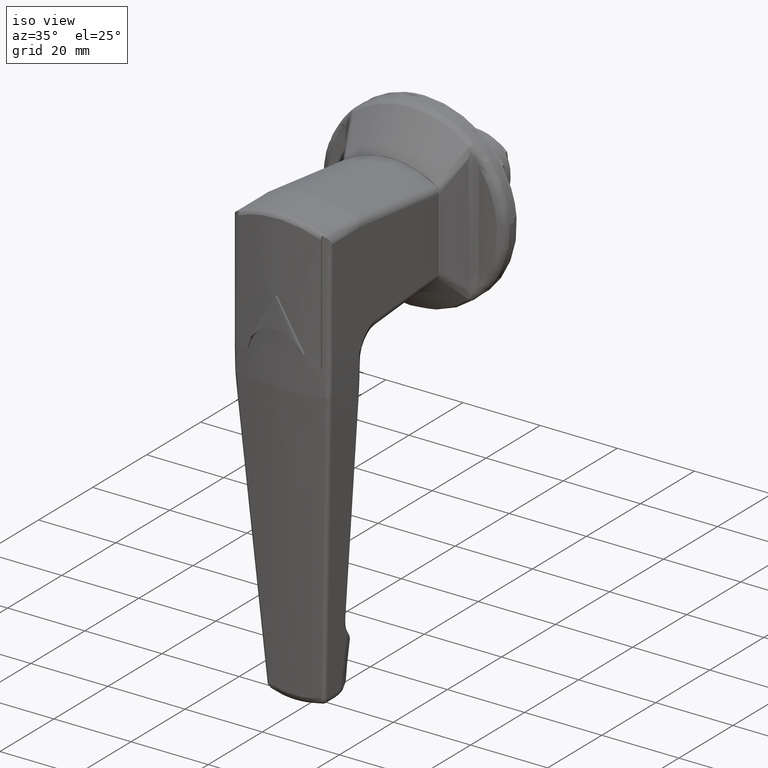
[diagram: clean part render]
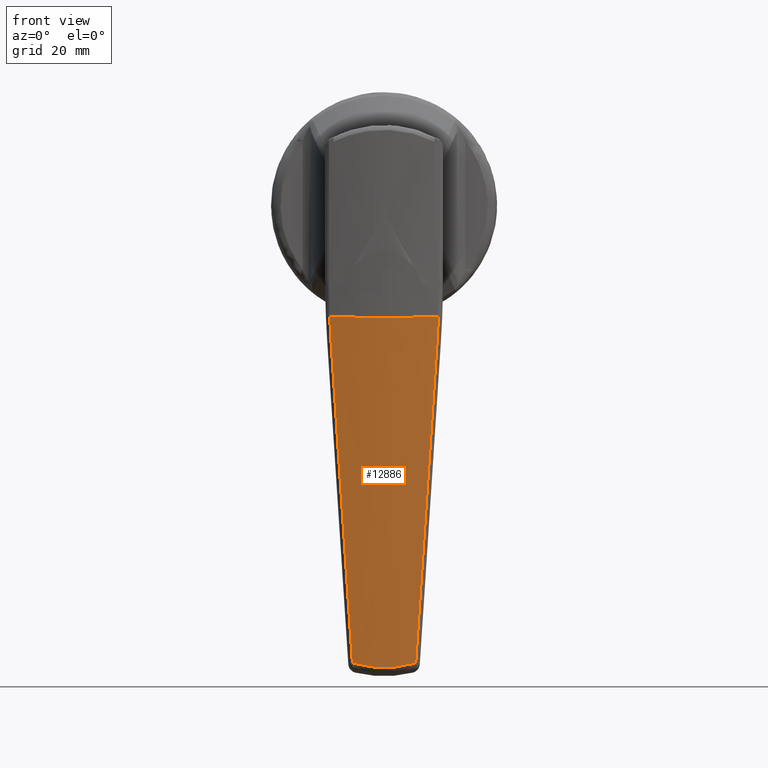
[diagram: tour spotlight — one face highlighted and labeled with its STEP entity id]
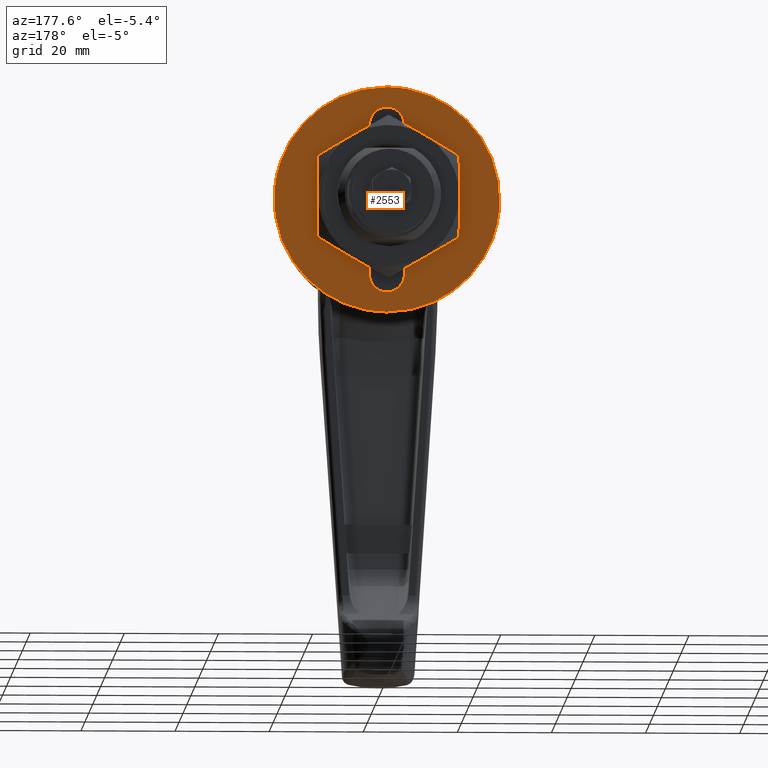
[diagram: tour spotlight — one face highlighted and labeled with its STEP entity id]
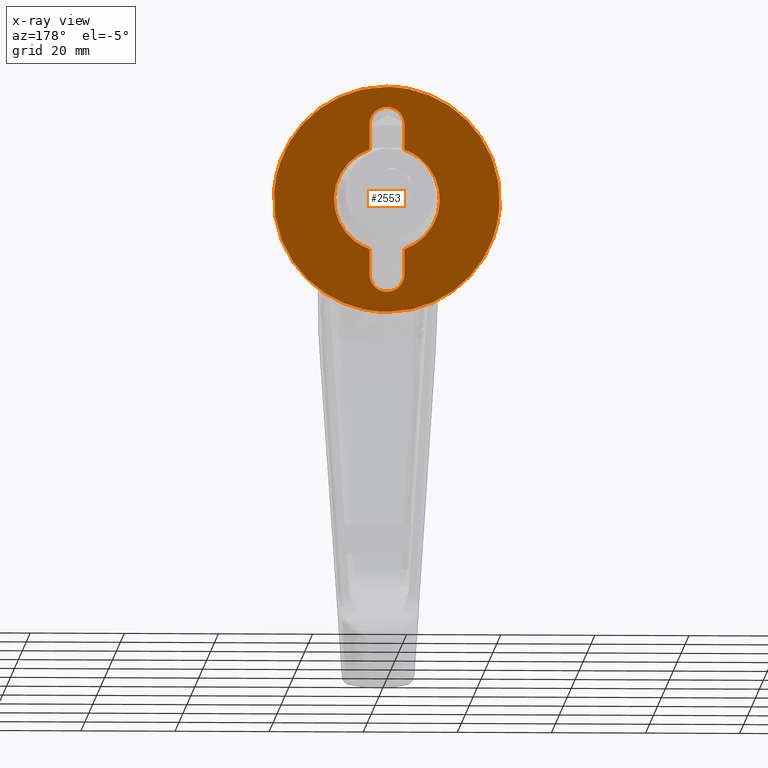
[diagram: x-ray of the same camera — body ghosted, this tour face saturated]
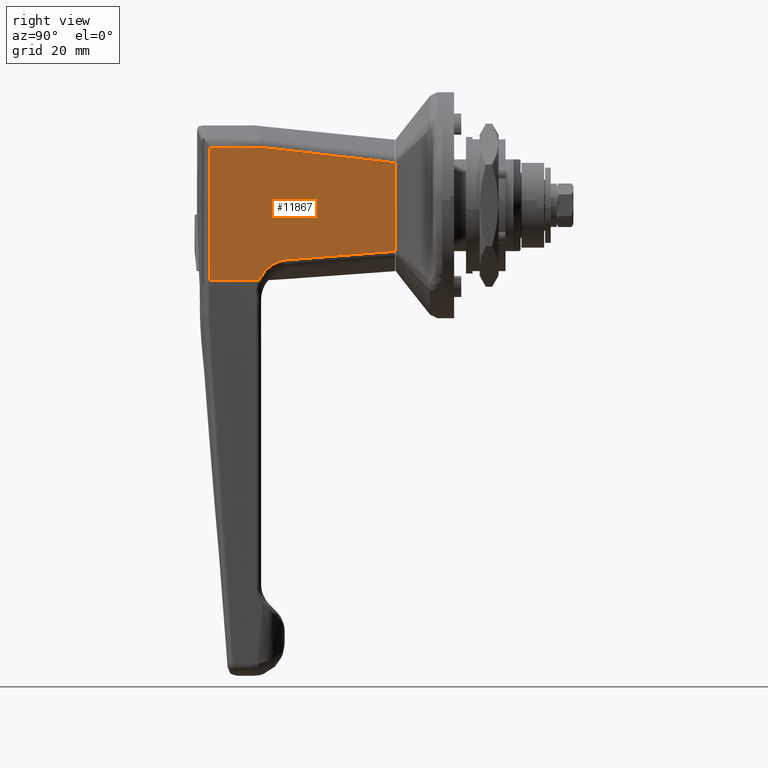
[diagram: tour spotlight — one face highlighted and labeled with its STEP entity id]
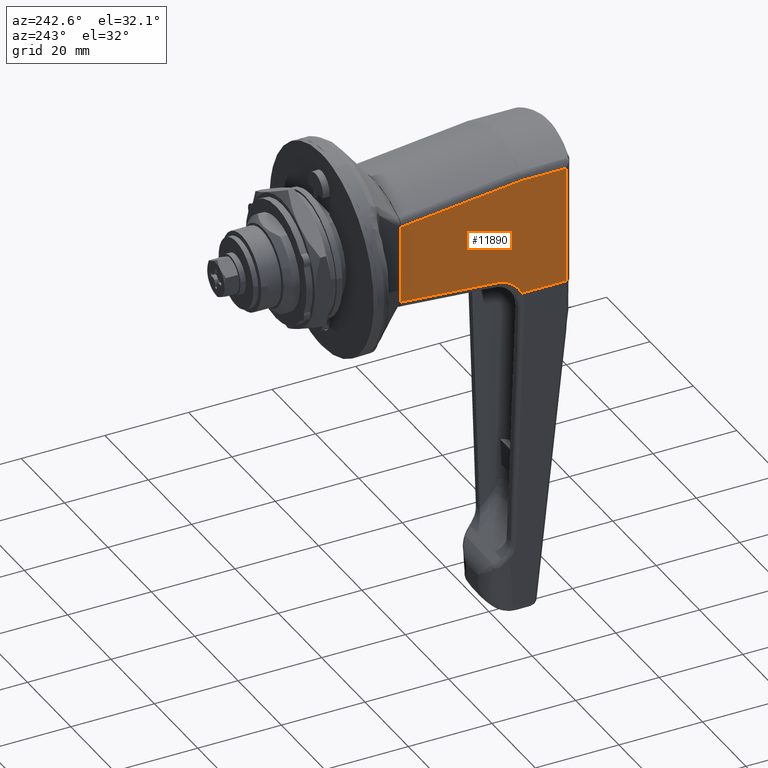
[diagram: tour spotlight — one face highlighted and labeled with its STEP entity id]
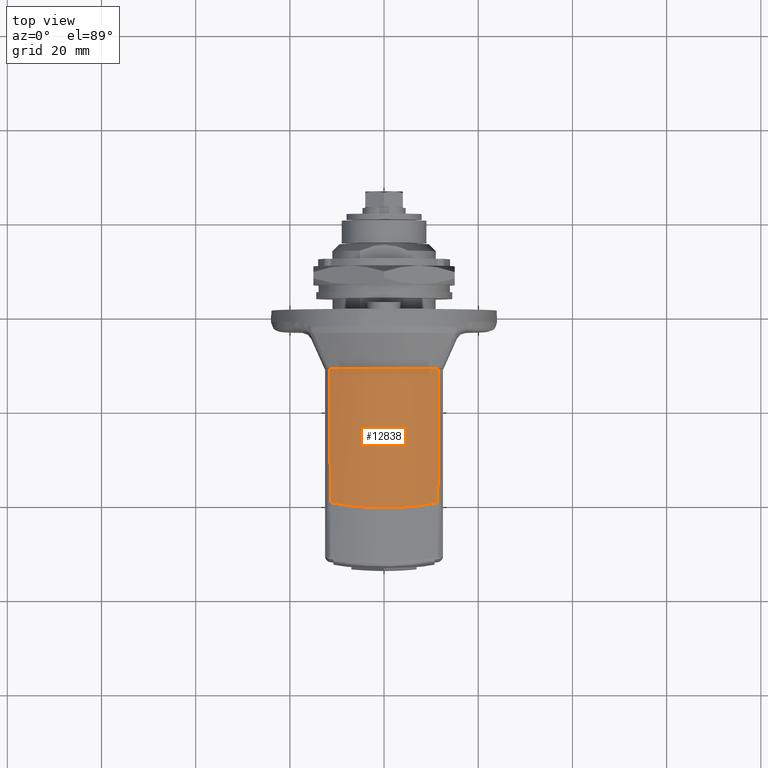
[diagram: tour spotlight — one face highlighted and labeled with its STEP entity id]
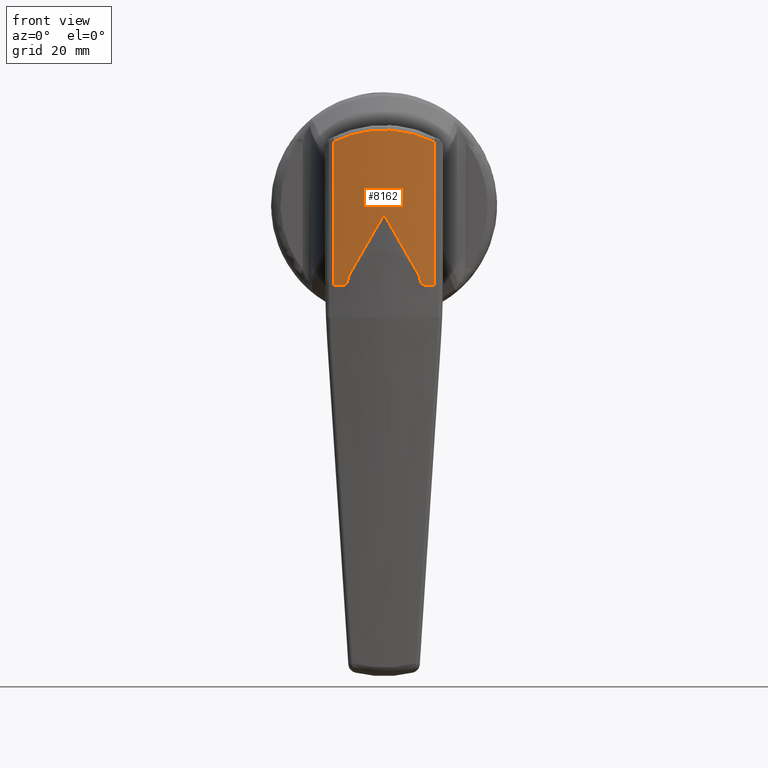
[diagram: tour spotlight — one face highlighted and labeled with its STEP entity id]
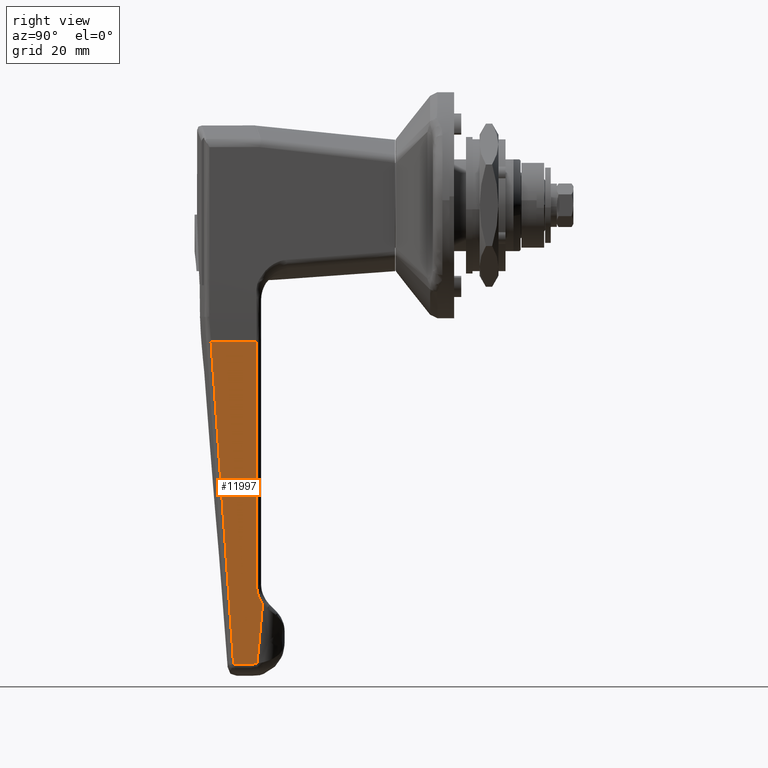
[diagram: tour spotlight — one face highlighted and labeled with its STEP entity id]
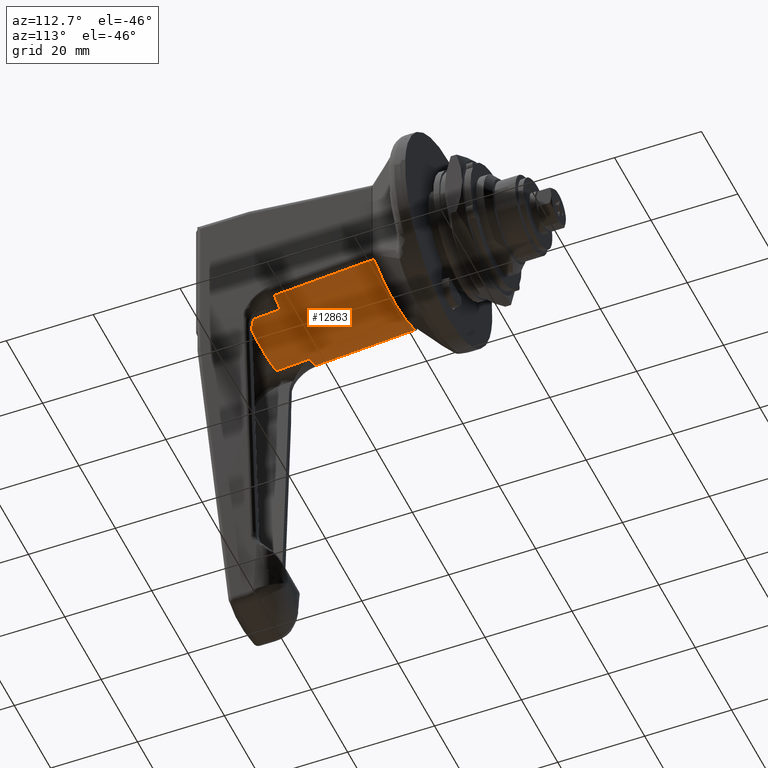
[diagram: tour spotlight — one face highlighted and labeled with its STEP entity id]
A machine part: a face-by-face anatomy tour. The part has 326 B-rep faces; the first image is the clean iso view, then the 8 largest visible faces are spotlighted one at a time (largest first), each with its STEP entity span.

Face 1 — front view, entity #12886. In plain terms, the highlighted face is a freeform B-spline surface patch.
Definition (entity closure, byte-faithful):
#8623=CARTESIAN_POINT('',(-47.843350291631012,6.721442873554510,-97.221635426065106));
#8624=VERTEX_POINT('',#8623);
#8625=CARTESIAN_POINT('',(-47.843350291631097,-6.721442873554570,-97.221635426064509));
#8626=VERTEX_POINT('',#8625);
#8627=CARTESIAN_POINT('',(-47.843350291631012,6.721442873554510,-97.221635426065106));
#8628=CARTESIAN_POINT('',(-47.942343965048423,5.625168979217052,-97.534044632470724));
#8629=CARTESIAN_POINT('',(-48.018338699075777,4.516803319526463,-97.767285167040242));
#8630=CARTESIAN_POINT('',(-48.120766750077792,2.276364656302008,-98.079994726501369));
#8631=CARTESIAN_POINT('',(-48.147216056812042,1.144244770845104,-98.159463559908417));
#8632=CARTESIAN_POINT('',(-48.147213895691969,-1.144385010630619,-98.159457032877526));
#8633=CARTESIAN_POINT('',(-48.120764627375983,-2.276422545351761,-98.079988280958958));
#8634=CARTESIAN_POINT('',(-48.018337641457457,-4.516814994191162,-97.767281903166079));
#8635=CARTESIAN_POINT('',(-47.942343942772013,-5.625169225910141,-97.534044562169669));
#8636=CARTESIAN_POINT('',(-47.843350291631097,-6.721442873554570,-97.221635426064509));
#8637=B_SPLINE_CURVE_WITH_KNOTS('',3,(#8627,#8628,#8629,#8630,#8631,#8632,#8633,#8634,#8635,#8636),.UNSPECIFIED.,.F.,.U.,(4,2,2,2,4),(0.0,0.250000000000000,0.500000000000000,0.750000000000000,1.0),.UNSPECIFIED.);
#8638=EDGE_CURVE('',#8624,#8626,#8637,.T.);
#9744=CARTESIAN_POINT('',(-52.976796852724597,11.539276852080100,-23.729824595575849));
#9745=VERTEX_POINT('',#9744);
#9759=CARTESIAN_POINT('',(-52.976796852724597,-11.539276852080119,-23.729824595575700));
#9760=VERTEX_POINT('',#9759);
#9761=CARTESIAN_POINT('',(-52.976796852724597,-11.539276852080119,-23.729824595575700));
#9762=CARTESIAN_POINT('',(-55.238142369739165,-1.040834E-013,-23.821621979607873));
#9763=CARTESIAN_POINT('',(-52.976796852724597,11.539276852080100,-23.729824595575849));
#9771=(BOUNDED_CURVE()B_SPLINE_CURVE(2,(#9761,#9762,#9763),.UNSPECIFIED.,.F.,.U.)CURVE()GEOMETRIC_REPRESENTATION_ITEM()QUASI_UNIFORM_CURVE()RATIONAL_B_SPLINE_CURVE((1.0,0.981332015642663,1.0))REPRESENTATION_ITEM(''));
#9772=EDGE_CURVE('',#9760,#9745,#9771,.T.);
#9937=CARTESIAN_POINT('',(-52.615893216564501,-11.263684719335300,-28.911002289136800));
#9938=VERTEX_POINT('',#9937);
#9962=CARTESIAN_POINT('',(-52.615893216564501,-11.263684719335300,-28.911002289136800));
#9963=CARTESIAN_POINT('',(-52.731950861058927,-11.378461873869339,-27.184866236858511));
#9964=CARTESIAN_POINT('',(-52.852142583333240,-11.470319611036150,-25.457799043496880));
#9965=CARTESIAN_POINT('',(-52.976796852724597,-11.539276852080119,-23.729824595575700));
#9966=QUASI_UNIFORM_CURVE('',3,(#9962,#9963,#9964,#9965),.UNSPECIFIED.,.F.,.U.);
#9967=EDGE_CURVE('',#9938,#9760,#9966,.T.);
#10104=CARTESIAN_POINT('',(-52.615893216564501,11.263684719335240,-28.911002289136849));
#10105=VERTEX_POINT('',#10104);
#10119=CARTESIAN_POINT('',(-52.976796852724597,11.539276852080080,-23.729824595575849));
#10120=CARTESIAN_POINT('',(-52.852142583333247,11.470319611036111,-25.457799043497001));
#10121=CARTESIAN_POINT('',(-52.731950861058927,11.378461873869281,-27.184866236858600));
#10122=CARTESIAN_POINT('',(-52.615893216564501,11.263684719335240,-28.911002289136849));
#10123=QUASI_UNIFORM_CURVE('',3,(#10119,#10120,#10121,#10122),.UNSPECIFIED.,.F.,.U.);
#10124=EDGE_CURVE('',#9745,#10105,#10123,.T.);
#10185=CARTESIAN_POINT('',(-47.843350291631097,-6.721442873554570,-97.221635426064509));
#10186=CARTESIAN_POINT('',(-50.332782404094182,-9.005763979320179,-62.867920008080844));
#10187=CARTESIAN_POINT('',(-52.615893216564501,-11.263684719335300,-28.911002289136800));
#10195=(BOUNDED_CURVE()B_SPLINE_CURVE(2,(#10185,#10186,#10187),.UNSPECIFIED.,.F.,.U.)CURVE()GEOMETRIC_REPRESENTATION_ITEM()QUASI_UNIFORM_CURVE()RATIONAL_B_SPLINE_CURVE((1.0,0.999266857121347,1.0))REPRESENTATION_ITEM(''));
#10196=EDGE_CURVE('',#8626,#9938,#10195,.T.);
#10338=CARTESIAN_POINT('',(-52.615893216564530,11.263684719335259,-28.911002289137041));
#10339=CARTESIAN_POINT('',(-50.332782404094040,9.005763979320001,-62.867920008083281));
#10340=CARTESIAN_POINT('',(-47.843350291631012,6.721442873554510,-97.221635426065106));
#10348=(BOUNDED_CURVE()B_SPLINE_CURVE(2,(#10338,#10339,#10340),.UNSPECIFIED.,.F.,.U.)CURVE()GEOMETRIC_REPRESENTATION_ITEM()QUASI_UNIFORM_CURVE()RATIONAL_B_SPLINE_CURVE((1.0,0.999266857121338,1.0))REPRESENTATION_ITEM(''));
#10349=EDGE_CURVE('',#10105,#8624,#10348,.T.);
#12864=CARTESIAN_POINT('',(-52.897538059378284,12.666888078339914,-21.807865634858825));
#12865=CARTESIAN_POINT('',(-46.646737974973718,12.666888078339914,-99.957733677407987));
#12866=CARTESIAN_POINT('',(-55.624739289978024,-0.000376737664099,-22.026000228165369));
#12867=CARTESIAN_POINT('',(-49.373939205573457,-0.000376737664099,-100.175868270714550));
#12868=CARTESIAN_POINT('',(-52.897383065603499,-12.667607969771549,-21.807853237715690));
#12869=CARTESIAN_POINT('',(-46.646582981198925,-12.667607969771549,-99.957721280264849));
#12877=(BOUNDED_SURFACE()B_SPLINE_SURFACE(1,2,((#12864,#12866,#12868),(#12865,#12867,#12869)),.UNSPECIFIED.,.F.,.F.,.U.)B_SPLINE_SURFACE_WITH_KNOTS((2,2),(3,3),(0.0,78.399453931536030),(0.0,25.623269872145620),.UNSPECIFIED.)GEOMETRIC_REPRESENTATION_ITEM()RATIONAL_B_SPLINE_SURFACE(((0.997761960876401,0.974946375773970,0.997095020877998),(0.997761960876401,0.974946375773970,0.997095020877998)))REPRESENTATION_ITEM('')SURFACE());
#12878=ORIENTED_EDGE('',*,*,#10349,.T.);
#12879=ORIENTED_EDGE('',*,*,#8638,.T.);
#12880=ORIENTED_EDGE('',*,*,#10196,.T.);
#12881=ORIENTED_EDGE('',*,*,#9967,.T.);
#12882=ORIENTED_EDGE('',*,*,#9772,.T.);
#12883=ORIENTED_EDGE('',*,*,#10124,.T.);
#12884=EDGE_LOOP('',(#12878,#12879,#12880,#12881,#12882,#12883));
#12885=FACE_OUTER_BOUND('',#12884,.T.);
#12886=ADVANCED_FACE('',(#12885),#12877,.T.);

Face 2 — auxiliary view, entity #2553. An x-ray twin of the same camera follows (body ghosted, this face saturated) — the face is partly hidden behind the body. In plain terms, the highlighted face is a freeform B-spline surface patch.
Definition (entity closure, byte-faithful):
#2187=CARTESIAN_POINT('',(3.469447E-017,-23.926015691007091,1.883018362970018));
#2188=VERTEX_POINT('',#2187);
#2194=CARTESIAN_POINT('',(0.0,0.000000313432878,24.0));
#2195=VERTEX_POINT('',#2194);
#2196=CARTESIAN_POINT('',(0.0,0.000000313432878,24.0));
#2197=CARTESIAN_POINT('',(0.0,-22.185371364515667,24.000000000000004));
#2198=CARTESIAN_POINT('',(3.469447E-017,-23.926015691007091,1.883018362970018));
#2206=(BOUNDED_CURVE()B_SPLINE_CURVE(2,(#2196,#2197,#2198),.UNSPECIFIED.,.F.,.U.)B_SPLINE_CURVE_WITH_KNOTS((3,3),(0.0,0.236331299694157),.UNSPECIFIED.)CURVE()GEOMETRIC_REPRESENTATION_ITEM()RATIONAL_B_SPLINE_CURVE((1.0,0.723120659704847,0.969723354213008))REPRESENTATION_ITEM(''));
#2207=EDGE_CURVE('',#2195,#2188,#2206,.T.);
#2209=CARTESIAN_POINT('',(3.469447E-017,23.926016317872850,-1.883018362970022));
#2210=VERTEX_POINT('',#2209);
#2211=CARTESIAN_POINT('',(3.469447E-017,23.926016317872850,-1.883018362970022));
#2212=CARTESIAN_POINT('',(0.0,24.000000313432874,-0.942962633989780));
#2213=CARTESIAN_POINT('',(0.0,24.000000313432881,1.919159E-023));
#2214=CARTESIAN_POINT('',(0.0,24.000000313432871,23.999999999999996));
#2215=CARTESIAN_POINT('',(0.0,0.000000313432878,24.0));
#2223=(BOUNDED_CURVE()B_SPLINE_CURVE(2,(#2211,#2212,#2213,#2214,#2215),.UNSPECIFIED.,.F.,.U.)B_SPLINE_CURVE_WITH_KNOTS((3,2,3),(0.736331299694157,0.750000000000000,1.0),.UNSPECIFIED.)CURVE()GEOMETRIC_REPRESENTATION_ITEM()RATIONAL_B_SPLINE_CURVE((0.969723354213007,0.983986121481701,1.0,0.707106781186548,1.0))REPRESENTATION_ITEM(''));
#2224=EDGE_CURVE('',#2210,#2195,#2223,.T.);
#2300=CARTESIAN_POINT('',(0.0,0.000000313432878,-24.0));
#2301=VERTEX_POINT('',#2300);
#2302=CARTESIAN_POINT('',(0.0,0.000000313432878,-24.0));
#2303=CARTESIAN_POINT('',(0.0,22.185371991381427,-23.999999999999993));
#2304=CARTESIAN_POINT('',(3.469447E-017,23.926016317872850,-1.883018362970021));
#2312=(BOUNDED_CURVE()B_SPLINE_CURVE(2,(#2302,#2303,#2304),.UNSPECIFIED.,.F.,.U.)B_SPLINE_CURVE_WITH_KNOTS((3,3),(0.500000000000000,0.736331299694157),.UNSPECIFIED.)CURVE()GEOMETRIC_REPRESENTATION_ITEM()RATIONAL_B_SPLINE_CURVE((1.0,0.723120659704847,0.969723354213008))REPRESENTATION_ITEM(''));
#2313=EDGE_CURVE('',#2301,#2210,#2312,.T.);
#2315=CARTESIAN_POINT('',(3.469447E-017,-23.926015691007084,1.883018362970019));
#2316=CARTESIAN_POINT('',(0.0,-23.999999686567122,0.942962633989778));
#2317=CARTESIAN_POINT('',(0.0,-23.999999686567119,1.919159E-023));
#2318=CARTESIAN_POINT('',(0.0,-23.999999686567126,-23.999999999999996));
#2319=CARTESIAN_POINT('',(0.0,0.000000313432878,-24.0));
#2327=(BOUNDED_CURVE()B_SPLINE_CURVE(2,(#2315,#2316,#2317,#2318,#2319),.UNSPECIFIED.,.F.,.U.)B_SPLINE_CURVE_WITH_KNOTS((3,2,3),(0.236331299694157,0.250000000000000,0.500000000000000),.UNSPECIFIED.)CURVE()GEOMETRIC_REPRESENTATION_ITEM()RATIONAL_B_SPLINE_CURVE((0.969723354213008,0.983986121481701,1.0,0.707106781186548,1.0))REPRESENTATION_ITEM(''));
#2328=EDGE_CURVE('',#2188,#2301,#2327,.T.);
#2444=CARTESIAN_POINT('',(0.0,-26.390274202601109,26.397599906966690));
#2445=CARTESIAN_POINT('',(0.0,26.390275687773752,26.397599906966690));
#2446=CARTESIAN_POINT('',(0.0,-26.390274202601109,-26.397601194427011));
#2447=CARTESIAN_POINT('',(0.0,26.390275687773752,-26.397601194427011));
#2448=B_SPLINE_SURFACE_WITH_KNOTS('',1,1,((#2444,#2446),(#2445,#2447)),.UNSPECIFIED.,.F.,.F.,.U.,(2,2),(2,2),(0.0,52.780549890374857),(0.0,52.795201101393701),.UNSPECIFIED.);
#2449=ORIENTED_EDGE('',*,*,#2207,.T.);
#2450=ORIENTED_EDGE('',*,*,#2328,.T.);
#2451=ORIENTED_EDGE('',*,*,#2313,.T.);
#2452=ORIENTED_EDGE('',*,*,#2224,.T.);
#2453=EDGE_LOOP('',(#2449,#2450,#2451,#2452));
#2454=FACE_OUTER_BOUND('',#2453,.T.);
#2455=CARTESIAN_POINT('',(0.0,-3.700000000000000,10.624146915427920));
#2456=VERTEX_POINT('',#2455);
#2457=CARTESIAN_POINT('',(0.0,-3.700000000000000,-10.624146915427920));
#2458=VERTEX_POINT('',#2457);
#2459=CARTESIAN_POINT('',(0.0,-3.700000000000004,10.624146915427920));
#2460=CARTESIAN_POINT('',(0.0,-11.249999686567117,7.994759216905932));
#2461=CARTESIAN_POINT('',(0.0,-11.249999686567120,1.919159E-023));
#2462=CARTESIAN_POINT('',(0.0,-11.249999686567117,-7.994759216905935));
#2463=CARTESIAN_POINT('',(0.0,-3.700000000000001,-10.624146915427920));
#2471=(BOUNDED_CURVE()B_SPLINE_CURVE(2,(#2459,#2460,#2461,#2462,#2463),.UNSPECIFIED.,.F.,.U.)B_SPLINE_CURVE_WITH_KNOTS((3,2,3),(0.0,0.500000000000000,1.0),.UNSPECIFIED.)CURVE()GEOMETRIC_REPRESENTATION_ITEM()RATIONAL_B_SPLINE_CURVE((1.0,0.815134625920648,1.0,0.815134625920648,1.0))REPRESENTATION_ITEM(''));
#2472=EDGE_CURVE('',#2456,#2458,#2471,.T.);
#2473=ORIENTED_EDGE('',*,*,#2472,.F.);
#2474=CARTESIAN_POINT('',(0.0,-3.700000000000000,16.0));
#2475=VERTEX_POINT('',#2474);
#2476=CARTESIAN_POINT('',(0.0,-3.700000000000000,16.0));
#2477=CARTESIAN_POINT('',(0.0,-3.700000000000000,10.624146915427920));
#2478=QUASI_UNIFORM_CURVE('',1,(#2476,#2477),.UNSPECIFIED.,.F.,.U.);
#2479=EDGE_CURVE('',#2475,#2456,#2478,.T.);
#2480=ORIENTED_EDGE('',*,*,#2479,.F.);
#2481=CARTESIAN_POINT('',(0.0,3.700000000000000,16.0));
#2482=VERTEX_POINT('',#2481);
#2483=CARTESIAN_POINT('',(0.0,3.699999999999999,16.0));
#2484=CARTESIAN_POINT('',(0.0,3.699999999999999,19.700000000000006));
#2485=CARTESIAN_POINT('',(0.0,-9.619438E-016,19.699999999999999));
#2486=CARTESIAN_POINT('',(0.0,-3.700000000000001,19.700000000000006));
#2487=CARTESIAN_POINT('',(0.0,-3.700000000000001,16.0));
#2495=(BOUNDED_CURVE()B_SPLINE_CURVE(2,(#2483,#2484,#2485,#2486,#2487),.UNSPECIFIED.,.F.,.U.)B_SPLINE_CURVE_WITH_KNOTS((3,2,3),(0.0,0.500000000000000,1.0),.UNSPECIFIED.)CURVE()GEOMETRIC_REPRESENTATION_ITEM()RATIONAL_B_SPLINE_CURVE((1.0,0.707106781186548,1.0,0.707106781186548,1.0))REPRESENTATION_ITEM(''));
#2496=EDGE_CURVE('',#2482,#2475,#2495,.T.);
#2497=ORIENTED_EDGE('',*,*,#2496,.F.);
#2498=CARTESIAN_POINT('',(0.0,3.700000000000000,10.624146915427920));
#2499=VERTEX_POINT('',#2498);
#2500=CARTESIAN_POINT('',(0.0,3.700000000000000,10.624146915427920));
#2501=CARTESIAN_POINT('',(0.0,3.700000000000000,16.0));
#2502=QUASI_UNIFORM_CURVE('',1,(#2500,#2501),.UNSPECIFIED.,.F.,.U.);
#2503=EDGE_CURVE('',#2499,#2482,#2502,.T.);
#2504=ORIENTED_EDGE('',*,*,#2503,.F.);
#2505=CARTESIAN_POINT('',(0.0,3.700000000000000,-10.624146915427920));
#2506=VERTEX_POINT('',#2505);
#2507=CARTESIAN_POINT('',(0.0,3.699999999999998,-10.624146915427920));
#2508=CARTESIAN_POINT('',(0.0,11.249999686567120,-7.994759216905933));
#2509=CARTESIAN_POINT('',(0.0,11.249999686567120,-1.919159E-023));
#2510=CARTESIAN_POINT('',(0.0,11.249999686567120,7.994759216905930));
#2511=CARTESIAN_POINT('',(0.0,3.700000000000007,10.624146915427920));
#2519=(BOUNDED_CURVE()B_SPLINE_CURVE(2,(#2507,#2508,#2509,#2510,#2511),.UNSPECIFIED.,.F.,.U.)B_SPLINE_CURVE_WITH_KNOTS((3,2,3),(0.0,0.500000000000000,1.0),.UNSPECIFIED.)CURVE()GEOMETRIC_REPRESENTATION_ITEM()RATIONAL_B_SPLINE_CURVE((1.0,0.815134625920648,1.0,0.815134625920648,1.0))REPRESENTATION_ITEM(''));
#2520=EDGE_CURVE('',#2506,#2499,#2519,.T.);
#2521=ORIENTED_EDGE('',*,*,#2520,.F.);
#2522=CARTESIAN_POINT('',(0.0,3.700000000000000,-16.0));
#2523=VERTEX_POINT('',#2522);
#2524=CARTESIAN_POINT('',(0.0,3.700000000000000,-16.0));
#2525=CARTESIAN_POINT('',(0.0,3.700000000000000,-10.624146915427920));
#2526=QUASI_UNIFORM_CURVE('',1,(#2524,#2525),.UNSPECIFIED.,.F.,.U.);
#2527=EDGE_CURVE('',#2523,#2506,#2526,.T.);
#2528=ORIENTED_EDGE('',*,*,#2527,.F.);
#2529=CARTESIAN_POINT('',(0.0,-3.700000000000000,-16.0));
#2530=VERTEX_POINT('',#2529);
#2531=CARTESIAN_POINT('',(0.0,-3.699999999999999,-16.0));
#2532=CARTESIAN_POINT('',(0.0,-3.699999999999999,-19.700000000000006));
#2533=CARTESIAN_POINT('',(0.0,9.619438E-016,-19.699999999999999));
#2534=CARTESIAN_POINT('',(0.0,3.700000000000001,-19.700000000000006));
#2535=CARTESIAN_POINT('',(0.0,3.700000000000001,-16.0));
#2543=(BOUNDED_CURVE()B_SPLINE_CURVE(2,(#2531,#2532,#2533,#2534,#2535),.UNSPECIFIED.,.F.,.U.)B_SPLINE_CURVE_WITH_KNOTS((3,2,3),(0.0,0.500000000000000,1.0),.UNSPECIFIED.)CURVE()GEOMETRIC_REPRESENTATION_ITEM()RATIONAL_B_SPLINE_CURVE((1.0,0.707106781186548,1.0,0.707106781186548,1.0))REPRESENTATION_ITEM(''));
#2544=EDGE_CURVE('',#2530,#2523,#2543,.T.);
#2545=ORIENTED_EDGE('',*,*,#2544,.F.);
#2546=CARTESIAN_POINT('',(0.0,-3.700000000000000,-10.624146915427920));
#2547=CARTESIAN_POINT('',(0.0,-3.700000000000000,-16.0));
#2548=QUASI_UNIFORM_CURVE('',1,(#2546,#2547),.UNSPECIFIED.,.F.,.U.);
#2549=EDGE_CURVE('',#2458,#2530,#2548,.T.);
#2550=ORIENTED_EDGE('',*,*,#2549,.F.);
#2551=EDGE_LOOP('',(#2473,#2480,#2497,#2504,#2521,#2528,#2545,#2550));
#2552=FACE_BOUND('',#2551,.T.);
#2553=ADVANCED_FACE('',(#2454,#2552),#2448,.F.);

Face 3 — right view, entity #11867. In plain terms, the highlighted face is a freeform B-spline surface patch.
Definition (entity closure, byte-faithful):
#6199=CARTESIAN_POINT('',(-41.447581331342647,-12.500000000000000,-15.848489868113100));
#6200=VERTEX_POINT('',#6199);
#6242=CARTESIAN_POINT('',(-35.576808043453553,-12.500000000000000,-11.592785692205920));
#6243=VERTEX_POINT('',#6242);
#6253=CARTESIAN_POINT('',(-41.447581331342647,-12.500000000000000,-15.848489868113100));
#6254=CARTESIAN_POINT('',(-40.446605468422938,-12.500000000000000,-14.053466012313709));
#6255=CARTESIAN_POINT('',(-39.088313313986880,-12.500000000000000,-12.996631593981300));
#6256=CARTESIAN_POINT('',(-37.474972884804949,-12.500000000000000,-11.741354009936900));
#6257=CARTESIAN_POINT('',(-35.576808043453553,-12.500000000000000,-11.592785692205920));
#6258=B_SPLINE_CURVE_WITH_KNOTS('',2,(#6253,#6254,#6255,#6256,#6257),.UNSPECIFIED.,.F.,.U.,(3,2,3),(0.0,0.500000000000000,1.0),.UNSPECIFIED.);
#6259=EDGE_CURVE('',#6200,#6243,#6258,.T.);
#6284=CARTESIAN_POINT('',(-12.500000000000000,-12.500000000000000,-9.779794864907029));
#6285=VERTEX_POINT('',#6284);
#6313=CARTESIAN_POINT('',(-35.576808043453553,-12.500000000000000,-11.592785692205920));
#6314=CARTESIAN_POINT('',(-27.884282718496070,-12.500000000000000,-10.991717818412150));
#6315=CARTESIAN_POINT('',(-20.191993116939820,-12.500000000000000,-10.387635968433569));
#6316=CARTESIAN_POINT('',(-12.500000000000000,-12.500000000000000,-9.779794864907029));
#6317=QUASI_UNIFORM_CURVE('',3,(#6313,#6314,#6315,#6316),.UNSPECIFIED.,.F.,.U.);
#6318=EDGE_CURVE('',#6243,#6285,#6317,.T.);
#7577=CARTESIAN_POINT('',(-41.209105322767513,-12.500000000000000,12.332614929181361));
#7578=VERTEX_POINT('',#7577);
#7765=CARTESIAN_POINT('',(-51.968385151134200,-12.500000000000000,12.332614929181361));
#7766=VERTEX_POINT('',#7765);
#7788=CARTESIAN_POINT('',(-41.209105322767513,-12.500000000000000,12.332614929181361));
#7789=CARTESIAN_POINT('',(-51.968385151134200,-12.500000000000000,12.332614929181361));
#7790=QUASI_UNIFORM_CURVE('',1,(#7788,#7789),.UNSPECIFIED.,.F.,.U.);
#7791=EDGE_CURVE('',#7578,#7766,#7790,.T.);
#7837=CARTESIAN_POINT('',(-12.500000000000000,-12.500000000000000,9.010135422798582));
#7838=VERTEX_POINT('',#7837);
#7869=CARTESIAN_POINT('',(-12.500000000000000,-12.500000000000000,9.010135422798582));
#7870=CARTESIAN_POINT('',(-17.283351469371389,-12.500000000000000,9.576757390068380));
#7871=CARTESIAN_POINT('',(-22.067596546526701,-12.500000000000000,10.135740721213921));
#7872=CARTESIAN_POINT('',(-31.637432899174780,-12.500000000000000,11.242196280776000));
#7873=CARTESIAN_POINT('',(-36.423012435762310,-12.500000000000000,11.789647499570041));
#7874=CARTESIAN_POINT('',(-41.209105322767513,-12.500000000000000,12.332614929181380));
#7875=B_SPLINE_CURVE_WITH_KNOTS('',3,(#7869,#7870,#7871,#7872,#7873,#7874),.UNSPECIFIED.,.F.,.U.,(4,2,4),(0.0,0.500000000000000,1.0),.UNSPECIFIED.);
#7876=EDGE_CURVE('',#7838,#7578,#7875,.T.);
#9992=CARTESIAN_POINT('',(-51.968385151134200,-12.500000000000000,-15.848489868113100));
#9993=VERTEX_POINT('',#9992);
#10238=CARTESIAN_POINT('',(-51.968385151134200,-12.500000000000000,12.332614929181361));
#10239=CARTESIAN_POINT('',(-51.968385151134200,-12.500000000000000,-15.848489868113100));
#10240=QUASI_UNIFORM_CURVE('',1,(#10238,#10239),.UNSPECIFIED.,.F.,.U.);
#10241=EDGE_CURVE('',#7766,#9993,#10240,.T.);
#11845=CARTESIAN_POINT('',(-53.939829430932129,-12.500000000000000,-17.256135998117511));
#11846=CARTESIAN_POINT('',(-53.939829430932129,-12.500000000000000,13.740261815061899));
#11847=CARTESIAN_POINT('',(-10.528553250078041,-12.500000000000000,-17.256135998117511));
#11848=CARTESIAN_POINT('',(-10.528553250078041,-12.500000000000000,13.740261815061899));
#11849=B_SPLINE_SURFACE_WITH_KNOTS('',1,1,((#11845,#11847),(#11846,#11848)),.UNSPECIFIED.,.F.,.F.,.U.,(2,2),(2,2),(0.0,30.996397813179410),(0.0,43.411276180854088),.UNSPECIFIED.);
#11850=CARTESIAN_POINT('',(-41.447581331342647,-12.500000000000000,-15.848489868113100));
#11851=CARTESIAN_POINT('',(-51.968385151134200,-12.500000000000000,-15.848489868113100));
#11852=QUASI_UNIFORM_CURVE('',1,(#11850,#11851),.UNSPECIFIED.,.F.,.U.);
#11853=EDGE_CURVE('',#6200,#9993,#11852,.T.);
#11854=ORIENTED_EDGE('',*,*,#11853,.F.);
#11855=ORIENTED_EDGE('',*,*,#6259,.T.);
#11856=ORIENTED_EDGE('',*,*,#6318,.T.);
#11857=CARTESIAN_POINT('',(-12.500000000000000,-12.500000000000000,9.010135422798582));
#11858=CARTESIAN_POINT('',(-12.500000000000000,-12.500000000000000,-9.779794864907029));
#11859=QUASI_UNIFORM_CURVE('',1,(#11857,#11858),.UNSPECIFIED.,.F.,.U.);
#11860=EDGE_CURVE('',#7838,#6285,#11859,.T.);
#11861=ORIENTED_EDGE('',*,*,#11860,.F.);
#11862=ORIENTED_EDGE('',*,*,#7876,.T.);
#11863=ORIENTED_EDGE('',*,*,#7791,.T.);
#11864=ORIENTED_EDGE('',*,*,#10241,.T.);
#11865=EDGE_LOOP('',(#11854,#11855,#11856,#11861,#11862,#11863,#11864));
#11866=FACE_OUTER_BOUND('',#11865,.T.);
#11867=ADVANCED_FACE('',(#11866),#11849,.F.);

Face 4 — auxiliary view, entity #11890. In plain terms, the highlighted face is a freeform B-spline surface patch.
Definition (entity closure, byte-faithful):
#5386=CARTESIAN_POINT('',(-35.576808043453553,12.500000000000000,-11.592785692205940));
#5387=VERTEX_POINT('',#5386);
#5423=CARTESIAN_POINT('',(-41.447581331342647,12.500000000000000,-15.848489868113001));
#5424=VERTEX_POINT('',#5423);
#5438=CARTESIAN_POINT('',(-35.576808043453553,12.500000000000000,-11.592785692205940));
#5439=CARTESIAN_POINT('',(-37.473436184796917,12.500000000000000,-11.741237306429630));
#5440=CARTESIAN_POINT('',(-39.086555456747888,12.500000000000000,-12.995457037940239));
#5441=CARTESIAN_POINT('',(-40.446056215814977,12.500000000000000,-14.052485310229279));
#5442=CARTESIAN_POINT('',(-41.447581331342647,12.500000000000000,-15.848489868113001));
#5443=B_SPLINE_CURVE_WITH_KNOTS('',2,(#5438,#5439,#5440,#5441,#5442),.UNSPECIFIED.,.F.,.U.,(3,2,3),(0.0,0.500000000000000,1.0),.UNSPECIFIED.);
#5444=EDGE_CURVE('',#5387,#5424,#5443,.T.);
#5578=CARTESIAN_POINT('',(-12.500000000000000,12.500000000000000,-9.779794864907029));
#5579=VERTEX_POINT('',#5578);
#5613=CARTESIAN_POINT('',(-12.500000000000000,12.500000000000000,-9.779794864907029));
#5614=CARTESIAN_POINT('',(-20.191993522985982,12.500000000000000,-10.387636000520381));
#5615=CARTESIAN_POINT('',(-27.884282392482490,12.500000000000000,-10.991717792938561));
#5616=CARTESIAN_POINT('',(-35.576808043453553,12.500000000000000,-11.592785692205920));
#5617=QUASI_UNIFORM_CURVE('',3,(#5613,#5614,#5615,#5616),.UNSPECIFIED.,.F.,.U.);
#5618=EDGE_CURVE('',#5579,#5387,#5617,.T.);
#7521=CARTESIAN_POINT('',(-41.209105322767762,12.500000000000000,12.332614929181361));
#7522=VERTEX_POINT('',#7521);
#7647=CARTESIAN_POINT('',(-12.500000000000000,12.500000000000000,9.010135422798539));
#7648=VERTEX_POINT('',#7647);
#7671=CARTESIAN_POINT('',(-41.209105322767762,12.500000000000000,12.332614929181361));
#7672=CARTESIAN_POINT('',(-36.423013434102181,12.500000000000000,11.789647612828571));
#7673=CARTESIAN_POINT('',(-31.637434895642041,12.500000000000011,11.242196509146931));
#7674=CARTESIAN_POINT('',(-22.067600538627492,12.500000000000011,10.135741185235570));
#7675=CARTESIAN_POINT('',(-17.283349820947230,12.500000000000000,9.576757194800798));
#7676=CARTESIAN_POINT('',(-12.500000000000000,12.500000000000000,9.010135422798550));
#7677=B_SPLINE_CURVE_WITH_KNOTS('',3,(#7671,#7672,#7673,#7674,#7675,#7676),.UNSPECIFIED.,.F.,.U.,(4,2,4),(0.0,0.500000000000000,1.0),.UNSPECIFIED.);
#7678=EDGE_CURVE('',#7522,#7648,#7677,.T.);
#7707=CARTESIAN_POINT('',(-51.968385151134299,12.500000000000000,12.332614929181361));
#7708=VERTEX_POINT('',#7707);
#7737=CARTESIAN_POINT('',(-51.968385151134299,12.500000000000000,12.332614929181361));
#7738=CARTESIAN_POINT('',(-41.209105322767762,12.500000000000000,12.332614929181361));
#7739=QUASI_UNIFORM_CURVE('',1,(#7737,#7738),.UNSPECIFIED.,.F.,.U.);
#7740=EDGE_CURVE('',#7708,#7522,#7739,.T.);
#10049=CARTESIAN_POINT('',(-51.968385151134200,12.500000000000000,-15.848489868113001));
#10050=VERTEX_POINT('',#10049);
#10267=CARTESIAN_POINT('',(-51.968385151134200,12.500000000000000,-15.848489868113001));
#10268=CARTESIAN_POINT('',(-51.968385151134299,12.500000000000000,12.332614929181361));
#10269=QUASI_UNIFORM_CURVE('',1,(#10267,#10268),.UNSPECIFIED.,.F.,.U.);
#10270=EDGE_CURVE('',#10050,#7708,#10269,.T.);
#11868=CARTESIAN_POINT('',(-53.939829430932228,12.500000000000000,13.740261059185761));
#11869=CARTESIAN_POINT('',(-53.939829430932228,12.500000000000000,-17.256136753993530));
#11870=CARTESIAN_POINT('',(-10.528553250078041,12.500000000000000,13.740261059185761));
#11871=CARTESIAN_POINT('',(-10.528553250078041,12.500000000000000,-17.256136753993530));
#11872=B_SPLINE_SURFACE_WITH_KNOTS('',1,1,((#11868,#11870),(#11869,#11871)),.UNSPECIFIED.,.F.,.F.,.U.,(2,2),(2,2),(0.0,30.996397813179300),(0.0,43.411276180854188),.UNSPECIFIED.);
#11873=ORIENTED_EDGE('',*,*,#5618,.T.);
#11874=ORIENTED_EDGE('',*,*,#5444,.T.);
#11875=CARTESIAN_POINT('',(-41.447581331342647,12.500000000000000,-15.848489868113001));
#11876=CARTESIAN_POINT('',(-51.968385151134200,12.500000000000000,-15.848489868113001));
#11877=QUASI_UNIFORM_CURVE('',1,(#11875,#11876),.UNSPECIFIED.,.F.,.U.);
#11878=EDGE_CURVE('',#5424,#10050,#11877,.T.);
#11879=ORIENTED_EDGE('',*,*,#11878,.T.);
#11880=ORIENTED_EDGE('',*,*,#10270,.T.);
#11881=ORIENTED_EDGE('',*,*,#7740,.T.);
#11882=ORIENTED_EDGE('',*,*,#7678,.T.);
#11883=CARTESIAN_POINT('',(-12.500000000000000,12.500000000000000,-9.779794864907029));
#11884=CARTESIAN_POINT('',(-12.500000000000000,12.500000000000000,9.010135422798539));
#11885=QUASI_UNIFORM_CURVE('',1,(#11883,#11884),.UNSPECIFIED.,.F.,.U.);
#11886=EDGE_CURVE('',#5579,#7648,#11885,.T.);
#11887=ORIENTED_EDGE('',*,*,#11886,.F.);
#11888=EDGE_LOOP('',(#11873,#11874,#11879,#11880,#11881,#11882,#11887));
#11889=FACE_OUTER_BOUND('',#11888,.T.);
#11890=ADVANCED_FACE('',(#11889),#11872,.F.);

Face 5 — top view, entity #12838. In plain terms, the highlighted face is a freeform B-spline surface patch.
Definition (entity closure, byte-faithful):
#7384=CARTESIAN_POINT('',(-41.008522466268452,-11.413055589062481,14.100691853118921));
#7385=VERTEX_POINT('',#7384);
#7399=CARTESIAN_POINT('',(-41.008522466268687,11.413055589062481,14.100691853118921));
#7400=VERTEX_POINT('',#7399);
#7401=CARTESIAN_POINT('',(-41.008522466268687,11.413055589062481,14.100691853118921));
#7402=CARTESIAN_POINT('',(-41.102527683305617,10.978715430091709,14.335654788858420));
#7403=CARTESIAN_POINT('',(-41.191167293786378,10.536919869650660,14.557330071154290));
#7404=CARTESIAN_POINT('',(-41.316032776182190,9.862950592777278,14.869737546576740));
#7405=CARTESIAN_POINT('',(-41.356312724801207,9.636365912265591,14.970540335031711));
#7406=CARTESIAN_POINT('',(-41.434119677567857,9.179599038035214,15.165297493246459));
#7407=CARTESIAN_POINT('',(-41.471546339590297,8.950010088790039,15.259000677132869));
#7408=CARTESIAN_POINT('',(-41.651352808252021,7.796078193525752,15.709259746363070));
#7409=CARTESIAN_POINT('',(-41.771838349342069,6.853842574934857,16.011253962026760));
#7410=CARTESIAN_POINT('',(-41.917579745287640,5.411796778122466,16.376702356306289));
#7411=CARTESIAN_POINT('',(-41.960312073623328,4.926319246032354,16.483886882821420));
#7412=CARTESIAN_POINT('',(-42.015486153728183,4.190775478311291,16.622302707357949));
#7413=CARTESIAN_POINT('',(-42.032388974192422,3.944372066345718,16.664711718638589));
#7414=CARTESIAN_POINT('',(-42.055480617909659,3.572908332998358,16.722652932022140));
#7415=CARTESIAN_POINT('',(-42.062804752486457,3.448694839314372,16.741031374397910));
#7416=CARTESIAN_POINT('',(-42.076650093824718,3.200443962333184,16.775774744426609));
#7417=CARTESIAN_POINT('',(-42.083176679589990,3.076328503929280,16.792153167957188));
#7418=CARTESIAN_POINT('',(-42.138375681294853,1.959378598455275,16.930679140804092));
#7419=CARTESIAN_POINT('',(-42.162367653262763,0.967166209868263,16.990913738542702));
#7420=CARTESIAN_POINT('',(-42.161562976336512,-1.016028017329957,16.988893795265959));
#7421=CARTESIAN_POINT('',(-42.136764997263320,-2.007009823029434,16.926635988295491));
#7422=CARTESIAN_POINT('',(-42.074635914926994,-3.244952442994009,16.770719773091560));
#7423=CARTESIAN_POINT('',(-42.060647624380522,-3.492501590927843,16.735617548727209));
#7424=CARTESIAN_POINT('',(-42.037291262448321,-3.863765511083971,16.677012699801569));
#7425=CARTESIAN_POINT('',(-42.029103654560302,-3.987593802969843,16.656469533007972));
#7426=CARTESIAN_POINT('',(-42.011996681463579,-4.234317988197898,16.613549326308629));
#7427=CARTESIAN_POINT('',(-42.003071784050462,-4.357310438188208,16.591158404073450));
#7428=CARTESIAN_POINT('',(-41.956607070327642,-4.970441713537928,16.474593304785358));
#7429=CARTESIAN_POINT('',(-41.913552680720223,-5.455093566524231,16.366602599425860));
#7430=CARTESIAN_POINT('',(-41.767236549456399,-6.892004059528667,15.999718823375609));
#7431=CARTESIAN_POINT('',(-41.646886984454788,-7.827280759522340,15.698072370525750));
#7432=CARTESIAN_POINT('',(-41.361508487044297,-9.653590330756440,14.983455875328250));
#7433=CARTESIAN_POINT('',(-41.196479383871882,-10.544622537740601,14.570483961947451));
#7434=CARTESIAN_POINT('',(-41.008522466268403,-11.413055589062459,14.100691853118921));
#7435=B_SPLINE_CURVE_WITH_KNOTS('',3,(#7401,#7402,#7403,#7404,#7405,#7406,#7407,#7408,#7409,#7410,#7411,#7412,#7413,#7414,#7415,#7416,#7417,#7418,#7419,#7420,#7421,#7422,#7423,#7424,#7425,#7426,#7427,#7428,#7429,#7430,#7431,#7432,#7433,#7434),.UNSPECIFIED.,.F.,.U.,(4,2,2,2,2,2,2,2,2,2,2,2,2,2,2,2,4),(0.0,0.062500000000000,0.093750000000000,0.125000000000000,0.250000000000000,0.312500000000000,0.343750000000000,0.359375000000000,0.375000000000000,0.500000000000000,0.625000000000000,0.656250000000000,0.671875000000000,0.687500000000000,0.750000000000000,0.875000000000000,1.0),.UNSPECIFIED.);
#7436=EDGE_CURVE('',#7400,#7385,#7435,.T.);
#7649=CARTESIAN_POINT('',(-12.500000000000000,11.544179545141439,10.727838066086139));
#7650=VERTEX_POINT('',#7649);
#7681=CARTESIAN_POINT('',(-12.500000000000000,11.544179545141439,10.727838066086139));
#7682=CARTESIAN_POINT('',(-17.249536505274229,11.519197008879379,11.305637723633611));
#7683=CARTESIAN_POINT('',(-22.000209924993939,11.495993749539069,11.874121514931050));
#7684=CARTESIAN_POINT('',(-31.503222789026310,11.452480108354290,12.997120560408170));
#7685=CARTESIAN_POINT('',(-36.255554175715680,11.432171468775691,13.551610642772900));
#7686=CARTESIAN_POINT('',(-41.008522466268687,11.413055589062459,14.100691853119059));
#7687=B_SPLINE_CURVE_WITH_KNOTS('',3,(#7681,#7682,#7683,#7684,#7685,#7686),.UNSPECIFIED.,.F.,.U.,(4,2,4),(0.0,0.500000000000000,1.0),.UNSPECIFIED.);
#7688=EDGE_CURVE('',#7650,#7400,#7687,.T.);
#7835=CARTESIAN_POINT('',(-12.500000000000000,-11.544179545141439,10.727838066086180));
#7836=VERTEX_POINT('',#7835);
#7859=CARTESIAN_POINT('',(-41.008522466268452,-11.413055589062481,14.100691853118921));
#7860=CARTESIAN_POINT('',(-36.255552655229508,-11.432171474890930,13.551610467120369));
#7861=CARTESIAN_POINT('',(-31.503219748457969,-11.452480121344230,12.997120205674680));
#7862=CARTESIAN_POINT('',(-22.000203845452130,-11.495993778309460,11.874120791914301));
#7863=CARTESIAN_POINT('',(-17.249539023612900,-11.519196995632930,11.305638029999390));
#7864=CARTESIAN_POINT('',(-12.500000000000000,-11.544179545141439,10.727838066086180));
#7865=B_SPLINE_CURVE_WITH_KNOTS('',3,(#7859,#7860,#7861,#7862,#7863,#7864),.UNSPECIFIED.,.F.,.U.,(4,2,4),(0.0,0.500000000000000,1.0),.UNSPECIFIED.);
#7866=EDGE_CURVE('',#7385,#7836,#7865,.T.);
#12741=CARTESIAN_POINT('',(-12.500000000000000,-11.544179545141439,10.727838066086180));
#12742=CARTESIAN_POINT('',(-12.499999999999995,1.321165E-014,17.843880019256957));
#12743=CARTESIAN_POINT('',(-12.500000000000000,11.544179545141439,10.727838066086139));
#12751=(BOUNDED_CURVE()B_SPLINE_CURVE(2,(#12741,#12742,#12743),.UNSPECIFIED.,.F.,.U.)CURVE()GEOMETRIC_REPRESENTATION_ITEM()QUASI_UNIFORM_CURVE()RATIONAL_B_SPLINE_CURVE((1.0,0.851265366640273,1.0))REPRESENTATION_ITEM(''));
#12752=EDGE_CURVE('',#7836,#7650,#12751,.T.);
#12818=CARTESIAN_POINT('',(-11.758450742719811,12.200851394713331,10.216912599605470));
#12819=CARTESIAN_POINT('',(-42.922058279919497,13.948895115018299,12.826891087408590));
#12820=CARTESIAN_POINT('',(-11.758450742719814,-0.086611304294649,18.446490778068419));
#12821=CARTESIAN_POINT('',(-42.922058279919497,-0.099020302788412,22.235539643030162));
#12822=CARTESIAN_POINT('',(-11.758450742719811,-12.319907864661131,10.136607996640519));
#12823=CARTESIAN_POINT('',(-42.922058279919497,-14.085009076113300,12.735081061388890));
#12831=(BOUNDED_SURFACE()B_SPLINE_SURFACE(1,2,((#12818,#12820,#12822),(#12819,#12821,#12823)),.UNSPECIFIED.,.F.,.F.,.U.)B_SPLINE_SURFACE_WITH_KNOTS((2,2),(3,3),(0.0,31.321527409874211),(0.0,30.654432635662289),.UNSPECIFIED.)GEOMETRIC_REPRESENTATION_ITEM()RATIONAL_B_SPLINE_SURFACE(((1.0,0.829037572555042,1.0),(1.0,0.829037572555042,1.0)))REPRESENTATION_ITEM('')SURFACE());
#12832=ORIENTED_EDGE('',*,*,#7436,.T.);
#12833=ORIENTED_EDGE('',*,*,#7866,.T.);
#12834=ORIENTED_EDGE('',*,*,#12752,.T.);
#12835=ORIENTED_EDGE('',*,*,#7688,.T.);
#12836=EDGE_LOOP('',(#12832,#12833,#12834,#12835));
#12837=FACE_OUTER_BOUND('',#12836,.T.);
#12838=ADVANCED_FACE('',(#12837),#12831,.T.);

Face 6 — front view, entity #8162. In plain terms, the highlighted face is a freeform B-spline surface patch.
Definition (entity closure, byte-faithful):
#7056=CARTESIAN_POINT('',(-53.637278238092200,10.750000000000000,13.426115040235061));
#7057=VERTEX_POINT('',#7056);
#7077=CARTESIAN_POINT('',(-53.637278238092200,-10.750000000000000,13.426115040235061));
#7078=VERTEX_POINT('',#7077);
#7079=CARTESIAN_POINT('',(-53.637278238092200,-10.750000000000000,13.426115040235061));
#7080=CARTESIAN_POINT('',(-53.786753757250622,-9.922152039635551,13.847516907808281));
#7081=CARTESIAN_POINT('',(-53.922238579641217,-9.073116382045967,14.218220149944500));
#7082=CARTESIAN_POINT('',(-54.100892550153652,-7.767612926462106,14.699104465135621));
#7083=CARTESIAN_POINT('',(-54.156348406043548,-7.327106376587261,14.846834573859660));
#7084=CARTESIAN_POINT('',(-54.232926541051313,-6.658191461576611,15.049365603065469));
#7085=CARTESIAN_POINT('',(-54.257351467983042,-6.433859751982912,15.113696310608081));
#7086=CARTESIAN_POINT('',(-54.303919235776348,-5.982440605868837,15.235934064828241));
#7087=CARTESIAN_POINT('',(-54.326057295472040,-5.755349703163645,15.293827960992550));
#7088=CARTESIAN_POINT('',(-54.430268827506211,-4.619643299183469,15.565554236641971));
#7089=CARTESIAN_POINT('',(-54.493480289736560,-3.704985444040647,15.727839632955151));
#7090=CARTESIAN_POINT('',(-54.578310055801452,-1.863703689349985,15.944979012223021));
#7091=CARTESIAN_POINT('',(-54.599932770127502,-0.937079563744020,15.999828953963579));
#7092=CARTESIAN_POINT('',(-54.600033380293731,0.462013861301923,16.000084926041382));
#7093=CARTESIAN_POINT('',(-54.594675663407173,0.929908098342722,15.986464623674941));
#7094=CARTESIAN_POINT('',(-54.578383253848877,1.634101335176379,15.944950229371161));
#7095=CARTESIAN_POINT('',(-54.571594520468729,1.868342475999929,15.927641940258690));
#7096=CARTESIAN_POINT('',(-54.555383835166523,2.334740413470338,15.886256220549271));
#7097=CARTESIAN_POINT('',(-54.545957793116671,2.567077660044944,15.862168355601860));
#7098=CARTESIAN_POINT('',(-54.492360585187029,3.724513765275262,15.724966575857030));
#7099=CARTESIAN_POINT('',(-54.428803770506534,4.636904323721587,15.561749804535680));
#7100=CARTESIAN_POINT('',(-54.263539482875139,6.435368130896090,15.130800172771020));
#7101=CARTESIAN_POINT('',(-54.161822332997289,7.321440892216080,14.863068791454619));
#7102=CARTESIAN_POINT('',(-54.012682599510811,8.412429117024159,14.461679003302290));
#7103=CARTESIAN_POINT('',(-53.981720684499123,8.630021293968117,14.377960042242080));
#7104=CARTESIAN_POINT('',(-53.917825302640502,9.062312935089571,14.204237134997090));
#7105=CARTESIAN_POINT('',(-53.884909974539077,9.276911148086173,14.114283423242370));
#7106=CARTESIAN_POINT('',(-53.783390512502429,9.916101118132319,13.835183550843221));
#7107=CARTESIAN_POINT('',(-53.712013059105260,10.336092294629930,13.636807689606419));
#7108=CARTESIAN_POINT('',(-53.637278238092200,10.750000000000000,13.426115040235020));
#7109=B_SPLINE_CURVE_WITH_KNOTS('',3,(#7079,#7080,#7081,#7082,#7083,#7084,#7085,#7086,#7087,#7088,#7089,#7090,#7091,#7092,#7093,#7094,#7095,#7096,#7097,#7098,#7099,#7100,#7101,#7102,#7103,#7104,#7105,#7106,#7107,#7108),.UNSPECIFIED.,.F.,.U.,(4,2,2,2,2,2,2,2,2,2,2,2,2,2,4),(0.0,0.125000000000000,0.187500000000000,0.218750000000000,0.250000000000000,0.375000000000000,0.500000000000000,0.562500000000000,0.593750000000000,0.625000000000000,0.750000000000000,0.875000000000000,0.906250000000000,0.937500000000000,1.0),.UNSPECIFIED.);
#7110=EDGE_CURVE('',#7078,#7057,#7109,.T.);
#7991=CARTESIAN_POINT('',(-53.437456745759818,-11.803229513361506,-17.825000000009791));
#7992=CARTESIAN_POINT('',(-53.437456745759818,-11.803229513361506,16.845625000401782));
#7993=CARTESIAN_POINT('',(-55.785525362950700,0.001033027743616,-17.825000000009791));
#7994=CARTESIAN_POINT('',(-55.785525362950700,0.001033027743616,16.845625000401778));
#7995=CARTESIAN_POINT('',(-53.437061382666087,11.805216917520999,-17.825000000009801));
#7996=CARTESIAN_POINT('',(-53.437061382666087,11.805216917520999,16.845625000401778));
#8004=(BOUNDED_SURFACE()B_SPLINE_SURFACE(1,2,((#7991,#7993,#7995),(#7992,#7994,#7996)),.UNSPECIFIED.,.F.,.F.,.U.)B_SPLINE_SURFACE_WITH_KNOTS((2,2),(3,3),(0.0,34.670625000411583),(0.0,23.837505435620429),.UNSPECIFIED.)GEOMETRIC_REPRESENTATION_ITEM()RATIONAL_B_SPLINE_SURFACE(((0.998747377892620,0.978585188656983,0.996775628738465),(0.998747377892620,0.978585188656983,0.996775628738465)))REPRESENTATION_ITEM('')SURFACE());
#8005=CARTESIAN_POINT('',(-53.637278238092200,-10.750000000000000,-17.0));
#8006=VERTEX_POINT('',#8005);
#8007=CARTESIAN_POINT('',(-53.637278238092200,-10.750000000000000,-17.0));
#8008=CARTESIAN_POINT('',(-53.637278238092200,-10.750000000000000,13.426115040235061));
#8009=QUASI_UNIFORM_CURVE('',1,(#8007,#8008),.UNSPECIFIED.,.F.,.U.);
#8010=EDGE_CURVE('',#8006,#7078,#8009,.T.);
#8011=ORIENTED_EDGE('',*,*,#8010,.T.);
#8012=ORIENTED_EDGE('',*,*,#7110,.T.);
#8013=CARTESIAN_POINT('',(-53.637278238092200,10.750000000000000,-17.0));
#8014=VERTEX_POINT('',#8013);
#8015=CARTESIAN_POINT('',(-53.637278238092200,10.750000000000000,13.426115040235061));
#8016=CARTESIAN_POINT('',(-53.637278238092200,10.750000000000000,-17.0));
#8017=QUASI_UNIFORM_CURVE('',1,(#8015,#8016),.UNSPECIFIED.,.F.,.U.);
#8018=EDGE_CURVE('',#7057,#8014,#8017,.T.);
#8019=ORIENTED_EDGE('',*,*,#8018,.T.);
#8020=CARTESIAN_POINT('',(-53.960253982076601,8.774964000000100,-17.0));
#8021=VERTEX_POINT('',#8020);
#8022=CARTESIAN_POINT('',(-53.637278238092222,10.749999999999989,-17.0));
#8023=CARTESIAN_POINT('',(-53.815101318730498,9.765153281012511,-16.999999999999996));
#8024=CARTESIAN_POINT('',(-53.960253982076551,8.774964000000102,-17.0));
#8032=(BOUNDED_CURVE()B_SPLINE_CURVE(2,(#8022,#8023,#8024),.UNSPECIFIED.,.F.,.U.)CURVE()GEOMETRIC_REPRESENTATION_ITEM()QUASI_UNIFORM_CURVE()RATIONAL_B_SPLINE_CURVE((1.0,0.999863214450181,1.0))REPRESENTATION_ITEM(''));
#8033=EDGE_CURVE('',#8014,#8021,#8032,.T.);
#8034=ORIENTED_EDGE('',*,*,#8033,.T.);
#8035=CARTESIAN_POINT('',(-54.095087293630002,7.799967989019610,-16.222222362898350));
#8036=VERTEX_POINT('',#8035);
#8037=CARTESIAN_POINT('',(-53.960253982076502,8.774964000000100,-17.0));
#8038=CARTESIAN_POINT('',(-53.976780436062420,8.662225334289296,-17.0));
#8039=CARTESIAN_POINT('',(-53.992532015086752,8.552554872794763,-16.981464846931448));
#8040=CARTESIAN_POINT('',(-54.015071956085883,8.392678297459554,-16.925765849467179));
#8041=CARTESIAN_POINT('',(-54.022209379548237,8.341537874184919,-16.902911999885120));
#8042=CARTESIAN_POINT('',(-54.035725930092873,8.243857608284827,-16.849137378022469));
#8043=CARTESIAN_POINT('',(-54.042116036930743,8.197238770117705,-16.818189455301990));
#8044=CARTESIAN_POINT('',(-54.054164578364883,8.108646505399451,-16.747811087373769));
#8045=CARTESIAN_POINT('',(-54.059682793403042,8.067704664220392,-16.709163807993392));
#8046=CARTESIAN_POINT('',(-54.069683645725370,7.993025876738836,-16.625860883907830));
#8047=CARTESIAN_POINT('',(-54.074183734213143,7.959159255166761,-16.581103189666688));
#8048=CARTESIAN_POINT('',(-54.082179829459058,7.898672897436397,-16.485110505247089));
#8049=CARTESIAN_POINT('',(-54.085586329146018,7.872731575007440,-16.434883559816679));
#8050=CARTESIAN_POINT('',(-54.091211360034642,7.829752822356420,-16.331244454994209));
#8051=CARTESIAN_POINT('',(-54.093444723230377,7.812602163242880,-16.277654540421182));
#8052=CARTESIAN_POINT('',(-54.095087293629952,7.799967989019607,-16.222222362898350));
#8053=B_SPLINE_CURVE_WITH_KNOTS('',3,(#8037,#8038,#8039,#8040,#8041,#8042,#8043,#8044,#8045,#8046,#8047,#8048,#8049,#8050,#8051,#8052),.UNSPECIFIED.,.F.,.U.,(4,2,2,2,2,2,2,4),(0.0,0.250000000000000,0.375000000000000,0.500000000000000,0.625000000000000,0.750000000000000,0.875000000000000,1.0),.UNSPECIFIED.);
#8054=EDGE_CURVE('',#8021,#8036,#8053,.T.);
#8055=ORIENTED_EDGE('',*,*,#8054,.T.);
#8056=CARTESIAN_POINT('',(-54.201996611805313,6.928203466596260,-14.000000409319579));
#8057=VERTEX_POINT('',#8056);
#8058=CARTESIAN_POINT('',(-54.201996611805313,6.928203466596260,-14.000000409319579));
#8059=CARTESIAN_POINT('',(-54.181911271227413,7.102483656605364,-14.301775673593450));
#8060=CARTESIAN_POINT('',(-54.163412856040587,7.256328909806875,-14.613708457120641));
#8061=CARTESIAN_POINT('',(-54.136425963524879,7.475617976735315,-15.142542018657190));
#8062=CARTESIAN_POINT('',(-54.126724178254783,7.552949780862738,-15.353516851297931));
#8063=CARTESIAN_POINT('',(-54.113642529103743,7.655966864070989,-15.676458182186060));
#8064=CARTESIAN_POINT('',(-54.109521978884992,7.688179676498966,-15.785370699671100));
#8065=CARTESIAN_POINT('',(-54.101872641066599,7.747654247832058,-16.003358349531268));
#8066=CARTESIAN_POINT('',(-54.098334277847023,7.774992097519481,-16.112645774214599));
#8067=CARTESIAN_POINT('',(-54.095087293630002,7.799967989019610,-16.222222362898350));
#8068=B_SPLINE_CURVE_WITH_KNOTS('',3,(#8058,#8059,#8060,#8061,#8062,#8063,#8064,#8065,#8066,#8067),.UNSPECIFIED.,.F.,.U.,(4,2,2,2,4),(0.888829623460508,0.937500000000001,0.968750000000000,0.984375000000000,1.0),.UNSPECIFIED.);
#8069=EDGE_CURVE('',#8057,#8036,#8068,.T.);
#8070=ORIENTED_EDGE('',*,*,#8069,.F.);
#8071=CARTESIAN_POINT('',(-54.600000000000001,0.0,-2.000000000000115));
#8072=VERTEX_POINT('',#8071);
#8073=CARTESIAN_POINT('',(-54.600000000000080,-3.704434E-015,-2.000000000000108));
#8074=CARTESIAN_POINT('',(-54.600000000000080,3.475533751553408,-8.019801241193614));
#8075=CARTESIAN_POINT('',(-54.201996611805313,6.928203466596260,-14.000000409319579));
#8083=(BOUNDED_CURVE()B_SPLINE_CURVE(2,(#8073,#8074,#8075),.UNSPECIFIED.,.F.,.U.)CURVE()GEOMETRIC_REPRESENTATION_ITEM()QUASI_UNIFORM_CURVE()RATIONAL_B_SPLINE_CURVE((1.0,0.998354003247452,1.0))REPRESENTATION_ITEM(''));
#8084=EDGE_CURVE('',#8072,#8057,#8083,.T.);
#8085=ORIENTED_EDGE('',*,*,#8084,.F.);
#8086=CARTESIAN_POINT('',(-54.201996665591700,-6.928203000000000,-14.0));
#8087=VERTEX_POINT('',#8086);
#8088=CARTESIAN_POINT('',(-54.201996665591700,-6.928203000000000,-14.0));
#8089=CARTESIAN_POINT('',(-54.600000171766347,-3.475533517171931,-8.019800835232974));
#8090=CARTESIAN_POINT('',(-54.600000000000001,0.0,-2.000000000000115));
#8098=(BOUNDED_CURVE()B_SPLINE_CURVE(2,(#8088,#8089,#8090),.UNSPECIFIED.,.F.,.U.)CURVE()GEOMETRIC_REPRESENTATION_ITEM()QUASI_UNIFORM_CURVE()RATIONAL_B_SPLINE_CURVE((1.0,0.998354002052805,1.0))REPRESENTATION_ITEM(''));
#8099=EDGE_CURVE('',#8087,#8072,#8098,.T.);
#8100=ORIENTED_EDGE('',*,*,#8099,.F.);
#8101=CARTESIAN_POINT('',(-54.095087293630002,-7.799967989019501,-16.222222362898400));
#8102=VERTEX_POINT('',#8101);
#8103=CARTESIAN_POINT('',(-54.095087293630002,-7.799967989019501,-16.222222362898400));
#8104=CARTESIAN_POINT('',(-54.108082002713608,-7.700016467365941,-15.783685137694681));
#8105=CARTESIAN_POINT('',(-54.125506370280569,-7.564277128470566,-15.357614354375460));
#8106=CARTESIAN_POINT('',(-54.157098094123967,-7.307694190646235,-14.736914311556980));
#8107=CARTESIAN_POINT('',(-54.168538322297330,-7.213291061605527,-14.533097956297590));
#8108=CARTESIAN_POINT('',(-54.186911716545993,-7.058027797989915,-14.232110931460671));
#8109=CARTESIAN_POINT('',(-54.193250727700878,-7.003883898719762,-14.132397164026930));
#8110=CARTESIAN_POINT('',(-54.200476561860590,-6.941380302815405,-14.022888728067850));
#8111=CARTESIAN_POINT('',(-54.201235660416160,-6.934804708413566,-14.011434063570441));
#8112=CARTESIAN_POINT('',(-54.201996665591700,-6.928203000000000,-14.0));
#8113=B_SPLINE_CURVE_WITH_KNOTS('',3,(#8103,#8104,#8105,#8106,#8107,#8108,#8109,#8110,#8111,#8112),.UNSPECIFIED.,.F.,.U.,(4,2,2,2,4),(0.0,0.062500000000000,0.093750000000000,0.109375000000000,0.111203969171612),.UNSPECIFIED.);
#8114=EDGE_CURVE('',#8102,#8087,#8113,.T.);
#8115=ORIENTED_EDGE('',*,*,#8114,.F.);
#8116=CARTESIAN_POINT('',(-53.960253982076601,-8.774963999999999,-17.0));
#8117=VERTEX_POINT('',#8116);
#8118=CARTESIAN_POINT('',(-54.095087293629973,-7.799967989019516,-16.222222362898389));
#8119=CARTESIAN_POINT('',(-54.094276621863180,-7.806203440688559,-16.249580277847560));
#8120=CARTESIAN_POINT('',(-54.093314420938903,-7.813597094824539,-16.276714994343180));
#8121=CARTESIAN_POINT('',(-54.091078454477447,-7.830745854554228,-16.330529285044349));
#8122=CARTESIAN_POINT('',(-54.089797816240122,-7.840553381282575,-16.357316470072821));
#8123=CARTESIAN_POINT('',(-54.085544397306769,-7.873051555219333,-16.435599585144999));
#8124=CARTESIAN_POINT('',(-54.082155005394483,-7.898859861456433,-16.485365143563349));
#8125=CARTESIAN_POINT('',(-54.076237337511827,-7.943625204211541,-16.556471250521412));
#8126=CARTESIAN_POINT('',(-54.074125072918648,-7.959561218742115,-16.579579740258168));
#8127=CARTESIAN_POINT('',(-54.069611040245412,-7.993500155668253,-16.624586768194039));
#8128=CARTESIAN_POINT('',(-54.067199116574358,-8.011578490386212,-16.646556872022199));
#8129=CARTESIAN_POINT('',(-54.059645948162270,-8.067979731567064,-16.709468917133108));
#8130=CARTESIAN_POINT('',(-54.054160782298347,-8.108671289406528,-16.747778566533750));
#8131=CARTESIAN_POINT('',(-54.045246202383687,-8.174224368889158,-16.799932238256542));
#8132=CARTESIAN_POINT('',(-54.042159632952682,-8.196832032584890,-16.816426947905459));
#8133=CARTESIAN_POINT('',(-54.035747242515363,-8.243588982603454,-16.847602574264780));
#8134=CARTESIAN_POINT('',(-54.032409430946849,-8.267824112538051,-16.862320544586680));
#8135=CARTESIAN_POINT('',(-54.022205907952269,-8.341564729892893,-16.902948182873949));
#8136=CARTESIAN_POINT('',(-54.015104470356732,-8.392441397252965,-16.925621571174538));
#8137=CARTESIAN_POINT('',(-54.003992923499140,-8.471265306693699,-16.953174596987900));
#8138=CARTESIAN_POINT('',(-54.000212195556102,-8.497960314466244,-16.961277082189799));
#8139=CARTESIAN_POINT('',(-53.992491233094121,-8.552206994258008,-16.975276364388829));
#8140=CARTESIAN_POINT('',(-53.988539500850749,-8.579837875716088,-16.981179690728592));
#8141=CARTESIAN_POINT('',(-53.976607507267332,-8.662851695299844,-16.995279855437659));
#8142=CARTESIAN_POINT('',(-53.968506038657402,-8.718670868448955,-17.0));
#8143=CARTESIAN_POINT('',(-53.960253982076502,-8.774963999999999,-17.0));
#8144=B_SPLINE_CURVE_WITH_KNOTS('',3,(#8118,#8119,#8120,#8121,#8122,#8123,#8124,#8125,#8126,#8127,#8128,#8129,#8130,#8131,#8132,#8133,#8134,#8135,#8136,#8137,#8138,#8139,#8140,#8141,#8142,#8143),.UNSPECIFIED.,.F.,.U.,(4,2,2,2,2,2,2,2,2,2,2,2,4),(0.0,0.062500000000000,0.125000000000001,0.250000000000000,0.312499999999999,0.374999999999998,0.499999999999994,0.562499999999995,0.624999999999995,0.749999999999997,0.812499999999998,0.874999999999999,1.0),.UNSPECIFIED.);
#8145=EDGE_CURVE('',#8102,#8117,#8144,.T.);
#8146=ORIENTED_EDGE('',*,*,#8145,.T.);
#8147=CARTESIAN_POINT('',(-53.960253982076573,-8.774963999999981,-17.0));
#8148=CARTESIAN_POINT('',(-53.815101318730534,-9.765153281012280,-17.0));
#8149=CARTESIAN_POINT('',(-53.637278238092222,-10.749999999999980,-17.0));
#8157=(BOUNDED_CURVE()B_SPLINE_CURVE(2,(#8147,#8148,#8149),.UNSPECIFIED.,.F.,.U.)CURVE()GEOMETRIC_REPRESENTATION_ITEM()QUASI_UNIFORM_CURVE()RATIONAL_B_SPLINE_CURVE((1.0,0.999863214450181,1.0))REPRESENTATION_ITEM(''));
#8158=EDGE_CURVE('',#8117,#8006,#8157,.T.);
#8159=ORIENTED_EDGE('',*,*,#8158,.T.);
#8160=EDGE_LOOP('',(#8011,#8012,#8019,#8034,#8055,#8070,#8085,#8100,#8115,#8146,#8159));
#8161=FACE_OUTER_BOUND('',#8160,.T.);
#8162=ADVANCED_FACE('',(#8161),#8004,.T.);

Face 7 — right view, entity #11997. In plain terms, the highlighted face is a freeform B-spline surface patch.
Definition (entity closure, byte-faithful):
#6452=CARTESIAN_POINT('',(-42.0,-12.073825769527300,-28.897936895261651));
#6453=VERTEX_POINT('',#6452);
#6513=CARTESIAN_POINT('',(-42.0,-8.694515463715909,-80.579964860897306));
#6514=VERTEX_POINT('',#6513);
#6538=CARTESIAN_POINT('',(-42.0,-8.694515463715909,-80.579964860897306));
#6539=CARTESIAN_POINT('',(-42.0,-12.073825769527300,-28.897936895261651));
#6540=QUASI_UNIFORM_CURVE('',1,(#6538,#6539),.UNSPECIFIED.,.F.,.U.);
#6541=EDGE_CURVE('',#6514,#6453,#6540,.T.);
#6604=CARTESIAN_POINT('',(-40.691652699709749,-8.428069505302069,-84.654899160476305));
#6605=VERTEX_POINT('',#6604);
#6637=CARTESIAN_POINT('',(-40.691652699709749,-8.428069505302057,-84.654899160476475));
#6638=CARTESIAN_POINT('',(-42.0,-8.547558896826873,-82.827468852060449));
#6639=CARTESIAN_POINT('',(-42.0,-8.694515463715851,-80.579964860897306));
#6647=(BOUNDED_CURVE()B_SPLINE_CURVE(2,(#6637,#6638,#6639),.UNSPECIFIED.,.F.,.U.)CURVE()GEOMETRIC_REPRESENTATION_ITEM()QUASI_UNIFORM_CURVE()RATIONAL_B_SPLINE_CURVE((1.0,0.952127418682943,1.0))REPRESENTATION_ITEM(''));
#6648=EDGE_CURVE('',#6605,#6514,#6647,.T.);
#8795=CARTESIAN_POINT('',(-46.810766094548200,-7.592145216312230,-97.439242287070698));
#8796=VERTEX_POINT('',#8795);
#8864=CARTESIAN_POINT('',(-46.852808272678203,-7.607287954509600,-97.207654374694911));
#8865=VERTEX_POINT('',#8864);
#8866=CARTESIAN_POINT('',(-46.852808272678203,-7.607287954509600,-97.207654374694911));
#8867=CARTESIAN_POINT('',(-46.847095688982499,-7.602142254482236,-97.286350969162612));
#8868=CARTESIAN_POINT('',(-46.833181107993973,-7.597093499282290,-97.363564922254341));
#8869=CARTESIAN_POINT('',(-46.810766094548200,-7.592145216312230,-97.439242287070698));
#8870=QUASI_UNIFORM_CURVE('',3,(#8866,#8867,#8868,#8869),.UNSPECIFIED.,.F.,.U.);
#8871=EDGE_CURVE('',#8865,#8796,#8870,.T.);
#8906=CARTESIAN_POINT('',(-43.0,-7.592145216312230,-97.439242287070698));
#8907=VERTEX_POINT('',#8906);
#8921=CARTESIAN_POINT('',(-46.810766094548200,-7.592145216312230,-97.439242287070698));
#8922=CARTESIAN_POINT('',(-43.0,-7.592145216312230,-97.439242287070698));
#8923=QUASI_UNIFORM_CURVE('',1,(#8921,#8922),.UNSPECIFIED.,.F.,.U.);
#8924=EDGE_CURVE('',#8796,#8907,#8923,.T.);
#8985=CARTESIAN_POINT('',(-41.857309074168199,-7.601217082741310,-97.300500232609309));
#8986=VERTEX_POINT('',#8985);
#9000=CARTESIAN_POINT('',(-43.0,-7.592145216312230,-97.439242287070698));
#9001=CARTESIAN_POINT('',(-42.806731902380562,-7.592145216312231,-97.439242287070698));
#9002=CARTESIAN_POINT('',(-42.423050116375919,-7.593675854679708,-97.415833221979369));
#9003=CARTESIAN_POINT('',(-42.044944047653502,-7.598196396070048,-97.346697592098366));
#9004=CARTESIAN_POINT('',(-41.857309074168199,-7.601217082741361,-97.300500232609409));
#9005=B_SPLINE_CURVE_WITH_KNOTS('',3,(#9000,#9001,#9002,#9003,#9004),.UNSPECIFIED.,.F.,.U.,(4,1,4),(0.0,0.500000000000000,1.0),.UNSPECIFIED.);
#9006=EDGE_CURVE('',#8907,#8986,#9005,.T.);
#9426=CARTESIAN_POINT('',(-41.857309074168157,-7.601217082741328,-97.300500232609437));
#9427=CARTESIAN_POINT('',(-41.571539382778852,-7.803926360361405,-94.200333155072983));
#9428=CARTESIAN_POINT('',(-41.285769691389469,-8.006635637981507,-91.100166077536542));
#9429=CARTESIAN_POINT('',(-41.0,-8.209344915601619,-87.999999000000187));
#9430=CARTESIAN_POINT('',(-40.897217566569900,-8.282253112168434,-86.884965720158959));
#9431=CARTESIAN_POINT('',(-40.794435133139793,-8.355161308735250,-85.769932440317717));
#9432=CARTESIAN_POINT('',(-40.691652699709692,-8.428069505302062,-84.654899160476489));
#9433=B_SPLINE_CURVE_WITH_KNOTS('',3,(#9426,#9427,#9428,#9429,#9430,#9431,#9432),.UNSPECIFIED.,.F.,.U.,(4,3,4),(0.419075080750242,0.526276600374641,0.564833639089389),.UNSPECIFIED.);
#9434=EDGE_CURVE('',#8986,#6605,#9433,.T.);
#9939=CARTESIAN_POINT('',(-51.636799094111687,-12.073825769527300,-28.897936895261651));
#9940=VERTEX_POINT('',#9939);
#10199=CARTESIAN_POINT('',(-51.636799094111687,-12.073825769527300,-28.897936895261651));
#10200=CARTESIAN_POINT('',(-49.346518719111671,-9.853537041845463,-62.854281158321477));
#10201=CARTESIAN_POINT('',(-46.852808272678203,-7.607287954509600,-97.207654374694911));
#10209=(BOUNDED_CURVE()B_SPLINE_CURVE(2,(#10199,#10200,#10201),.UNSPECIFIED.,.F.,.U.)CURVE()GEOMETRIC_REPRESENTATION_ITEM()QUASI_UNIFORM_CURVE()RATIONAL_B_SPLINE_CURVE((1.0,0.999266857121218,1.0))REPRESENTATION_ITEM(''));
#10210=EDGE_CURVE('',#9940,#8865,#10209,.T.);
#11905=CARTESIAN_POINT('',(-42.0,-12.073825769527300,-28.897936895261651));
#11906=CARTESIAN_POINT('',(-51.636799094111687,-12.073825769527300,-28.897936895261651));
#11907=QUASI_UNIFORM_CURVE('',1,(#11905,#11906),.UNSPECIFIED.,.F.,.U.);
#11908=EDGE_CURVE('',#6453,#9940,#11907,.T.);
#11982=CARTESIAN_POINT('',(-52.183508851600337,-7.368285465660453,-100.862877540000600));
#11983=CARTESIAN_POINT('',(-52.183508851600337,-12.297685480109729,-25.474302255138781));
#11984=CARTESIAN_POINT('',(-40.144944018650683,-7.368285465660453,-100.862877540000600));
#11985=CARTESIAN_POINT('',(-40.144944018650683,-12.297685480109729,-25.474302255138781));
#11986=B_SPLINE_SURFACE_WITH_KNOTS('',1,1,((#11982,#11984),(#11983,#11985)),.UNSPECIFIED.,.F.,.F.,.U.,(2,2),(2,2),(0.0,75.549561666390431),(0.0,12.038564832949660),.UNSPECIFIED.);
#11987=ORIENTED_EDGE('',*,*,#9434,.T.);
#11988=ORIENTED_EDGE('',*,*,#6648,.T.);
#11989=ORIENTED_EDGE('',*,*,#6541,.T.);
#11990=ORIENTED_EDGE('',*,*,#11908,.T.);
#11991=ORIENTED_EDGE('',*,*,#10210,.T.);
#11992=ORIENTED_EDGE('',*,*,#8871,.T.);
#11993=ORIENTED_EDGE('',*,*,#8924,.T.);
#11994=ORIENTED_EDGE('',*,*,#9006,.T.);
#11995=EDGE_LOOP('',(#11987,#11988,#11989,#11990,#11991,#11992,#11993,#11994));
#11996=FACE_OUTER_BOUND('',#11995,.T.);
#11997=ADVANCED_FACE('',(#11996),#11986,.F.);

Face 8 — auxiliary view, entity #12863. In plain terms, the highlighted face is a freeform B-spline surface patch.
Definition (entity closure, byte-faithful):
#5388=CARTESIAN_POINT('',(-35.432606032590151,11.257161414904500,-13.438297104211500));
#5389=VERTEX_POINT('',#5388);
#5576=CARTESIAN_POINT('',(-12.500000000000000,11.305428904800040,-11.616152663476059));
#5577=VERTEX_POINT('',#5576);
#5605=CARTESIAN_POINT('',(-35.432606032590151,11.257161414904500,-13.438297104211500));
#5606=CARTESIAN_POINT('',(-27.788095748396149,11.272287001844999,-12.834775360260180));
#5607=CARTESIAN_POINT('',(-20.143868560476971,11.288314836855420,-12.227696768261181));
#5608=CARTESIAN_POINT('',(-12.500000000000000,11.305428904800040,-11.616152663476059));
#5609=QUASI_UNIFORM_CURVE('',3,(#5605,#5606,#5607,#5608),.UNSPECIFIED.,.F.,.U.);
#5610=EDGE_CURVE('',#5389,#5577,#5609,.T.);
#6216=CARTESIAN_POINT('',(-35.432606032590151,-11.257161414904500,-13.438297104211500));
#6217=VERTEX_POINT('',#6216);
#6286=CARTESIAN_POINT('',(-12.500000000000000,-11.305428904800040,-11.616152663476059));
#6287=VERTEX_POINT('',#6286);
#6321=CARTESIAN_POINT('',(-12.500000000000000,-11.305428904800040,-11.616152663476059));
#6322=CARTESIAN_POINT('',(-20.143868601735420,-11.288314836763041,-12.227696771562041));
#6323=CARTESIAN_POINT('',(-27.788095714579910,-11.272287001911909,-12.834775357590440));
#6324=CARTESIAN_POINT('',(-35.432606032590151,-11.257161414904500,-13.438297104211500));
#6325=QUASI_UNIFORM_CURVE('',3,(#6321,#6322,#6323,#6324),.UNSPECIFIED.,.F.,.U.);
#6326=EDGE_CURVE('',#6287,#6217,#6325,.T.);
#9519=CARTESIAN_POINT('',(-35.432606032590151,-7.917389836867810,-14.581440993610840));
#9520=VERTEX_POINT('',#9519);
#9521=CARTESIAN_POINT('',(-35.432606032590151,-11.257161414904500,-13.438297104211481));
#9522=CARTESIAN_POINT('',(-35.432606032590151,-9.621351467732776,-14.109423907361089));
#9523=CARTESIAN_POINT('',(-35.432606032590151,-7.917389836867806,-14.581440993610819));
#9531=(BOUNDED_CURVE()B_SPLINE_CURVE(2,(#9521,#9522,#9523),.UNSPECIFIED.,.F.,.U.)CURVE()GEOMETRIC_REPRESENTATION_ITEM()QUASI_UNIFORM_CURVE()RATIONAL_B_SPLINE_CURVE((1.0,0.998227584397911,1.0))REPRESENTATION_ITEM(''));
#9532=EDGE_CURVE('',#6217,#9520,#9531,.T.);
#9628=CARTESIAN_POINT('',(-35.432606032590151,7.917389836868050,-14.581440993610780));
#9629=VERTEX_POINT('',#9628);
#9630=CARTESIAN_POINT('',(-35.432606032590151,7.917389836868041,-14.581440993610761));
#9631=CARTESIAN_POINT('',(-35.432606032590151,9.621351467732877,-14.109423907361046));
#9632=CARTESIAN_POINT('',(-35.432606032590151,11.257161414904489,-13.438297104211481));
#9640=(BOUNDED_CURVE()B_SPLINE_CURVE(2,(#9630,#9631,#9632),.UNSPECIFIED.,.F.,.U.)CURVE()GEOMETRIC_REPRESENTATION_ITEM()QUASI_UNIFORM_CURVE()RATIONAL_B_SPLINE_CURVE((1.0,0.998227584397911,1.0))REPRESENTATION_ITEM(''));
#9641=EDGE_CURVE('',#9629,#5389,#9640,.T.);
#10886=CARTESIAN_POINT('',(-43.025397942350047,-7.890925464939630,-15.157765784634350));
#10887=VERTEX_POINT('',#10886);
#11371=CARTESIAN_POINT('',(-43.025397942350097,7.890925464940040,-15.157765784634250));
#11372=VERTEX_POINT('',#11371);
#11530=CARTESIAN_POINT('',(-43.025397942350089,7.890925464940041,-15.157765784634259));
#11531=CARTESIAN_POINT('',(-43.009083947978198,6.604266762957146,-15.504750685121760));
#11532=CARTESIAN_POINT('',(-42.995333077923753,5.302843025398267,-15.764961458437650));
#11533=CARTESIAN_POINT('',(-42.976470460887683,2.670816816624979,-16.114073832105500));
#11534=CARTESIAN_POINT('',(-42.971354323576392,1.340131155209633,-16.202996144759538));
#11535=CARTESIAN_POINT('',(-42.971382221869412,-1.351279483442230,-16.202501439675011));
#11536=CARTESIAN_POINT('',(-42.976524486209897,-2.680843745614698,-16.113105208205159));
#11537=CARTESIAN_POINT('',(-42.995395894443178,-5.309104343698479,-15.763767360306179));
#11538=CARTESIAN_POINT('',(-43.009128694052571,-6.607795814438233,-15.503798973859769));
#11539=CARTESIAN_POINT('',(-43.025397942350047,-7.890925464939630,-15.157765784634369));
#11540=B_SPLINE_CURVE_WITH_KNOTS('',3,(#11530,#11531,#11532,#11533,#11534,#11535,#11536,#11537,#11538,#11539),.UNSPECIFIED.,.F.,.U.,(4,2,2,2,4),(0.0,0.250000000000000,0.500000000000000,0.750000000000000,1.0),.UNSPECIFIED.);
#11541=EDGE_CURVE('',#11372,#10887,#11540,.T.);
#11755=CARTESIAN_POINT('',(-43.025397942350047,-7.890925464939630,-15.157765784634350));
#11756=CARTESIAN_POINT('',(-40.494454944960822,-7.899799842124260,-14.965822815850180));
#11757=CARTESIAN_POINT('',(-37.963524071622722,-7.908622205564139,-14.773717584623711));
#11758=CARTESIAN_POINT('',(-35.432606032590151,-7.917389836867815,-14.581440993610860));
#11759=QUASI_UNIFORM_CURVE('',3,(#11755,#11756,#11757,#11758),.UNSPECIFIED.,.F.,.U.);
#11760=EDGE_CURVE('',#10887,#9520,#11759,.T.);
#11786=CARTESIAN_POINT('',(-35.432606032590151,7.917389836868044,-14.581440993610791));
#11787=CARTESIAN_POINT('',(-37.963524079392613,7.908622205537450,-14.773717585213920));
#11788=CARTESIAN_POINT('',(-40.494454943063033,7.899799842131143,-14.965822815706220));
#11789=CARTESIAN_POINT('',(-43.025397942350097,7.890925464940040,-15.157765784634250));
#11790=QUASI_UNIFORM_CURVE('',3,(#11786,#11787,#11788,#11789),.UNSPECIFIED.,.F.,.U.);
#11791=EDGE_CURVE('',#9629,#11372,#11790,.T.);
#12725=CARTESIAN_POINT('',(-12.500000000000000,11.305428904800040,-11.616152663476070));
#12726=CARTESIAN_POINT('',(-12.500000000000007,3.469447E-015,-16.605688929932100));
#12727=CARTESIAN_POINT('',(-12.500000000000000,-11.305428904800040,-11.616152663476070));
#12735=(BOUNDED_CURVE()B_SPLINE_CURVE(2,(#12725,#12726,#12727),.UNSPECIFIED.,.F.,.U.)CURVE()GEOMETRIC_REPRESENTATION_ITEM()QUASI_UNIFORM_CURVE()RATIONAL_B_SPLINE_CURVE((1.0,0.914862595124145,1.0))REPRESENTATION_ITEM(''));
#12736=EDGE_CURVE('',#5577,#6287,#12735,.T.);
#12839=CARTESIAN_POINT('',(-11.736865051441240,-12.112475117835970,-11.183361029799910));
#12840=CARTESIAN_POINT('',(-43.807611264622821,-13.117353612213750,-13.272629958636211));
#12841=CARTESIAN_POINT('',(-11.736865051441248,0.119344753062568,-17.066515929449430));
#12842=CARTESIAN_POINT('',(-43.807611264622828,0.129245865312763,-19.643864774259768));
#12843=CARTESIAN_POINT('',(-11.736865051441240,12.305602953026424,-11.089556835462583));
#12844=CARTESIAN_POINT('',(-43.807611264622821,13.326503772020818,-13.171043554911050));
#12852=(BOUNDED_SURFACE()B_SPLINE_SURFACE(1,2,((#12839,#12841,#12843),(#12840,#12842,#12844)),.UNSPECIFIED.,.F.,.F.,.U.)B_SPLINE_SURFACE_WITH_KNOTS((2,2),(3,3),(0.0,32.154433413073292),(0.0,27.842890792541368),.UNSPECIFIED.)GEOMETRIC_REPRESENTATION_ITEM()RATIONAL_B_SPLINE_SURFACE(((1.0,0.895568840988331,0.991257310996816),(1.0,0.895568840988331,0.991257310996816)))REPRESENTATION_ITEM('')SURFACE());
#12853=ORIENTED_EDGE('',*,*,#12736,.T.);
#12854=ORIENTED_EDGE('',*,*,#6326,.T.);
#12855=ORIENTED_EDGE('',*,*,#9532,.T.);
#12856=ORIENTED_EDGE('',*,*,#11760,.F.);
#12857=ORIENTED_EDGE('',*,*,#11541,.F.);
#12858=ORIENTED_EDGE('',*,*,#11791,.F.);
#12859=ORIENTED_EDGE('',*,*,#9641,.T.);
#12860=ORIENTED_EDGE('',*,*,#5610,.T.);
#12861=EDGE_LOOP('',(#12853,#12854,#12855,#12856,#12857,#12858,#12859,#12860));
#12862=FACE_OUTER_BOUND('',#12861,.T.);
#12863=ADVANCED_FACE('',(#12862),#12852,.T.);